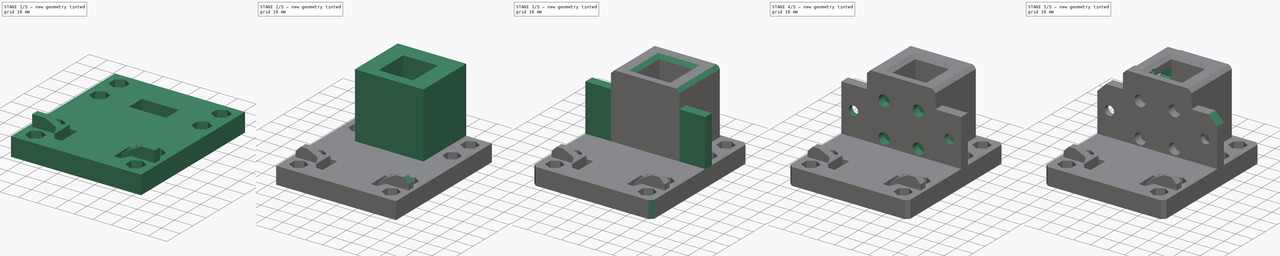
[diagram: build sequence overview — one tinted view per stage of 5, left to right]
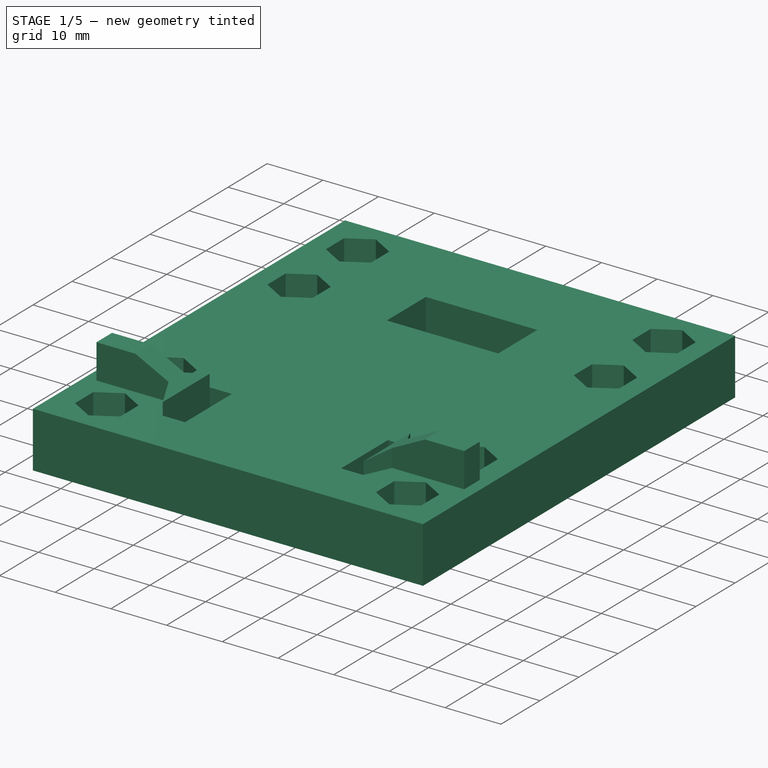
[diagram: stage 1 of 5 — iso view after this stage's code; geometry added in this stage tinted green]
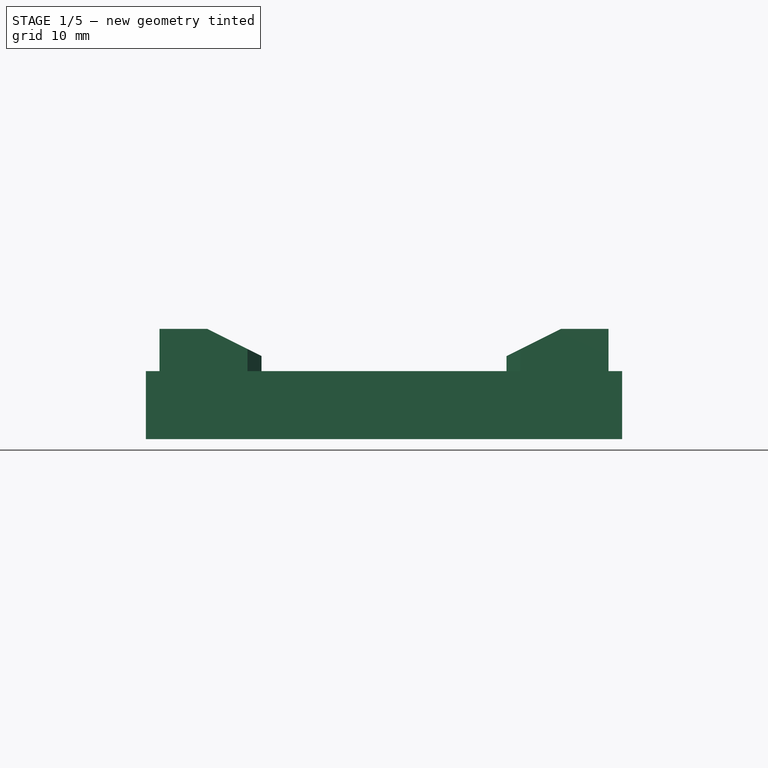
[diagram: stage 1 of 5 — front view after this stage's code; geometry added in this stage tinted green]
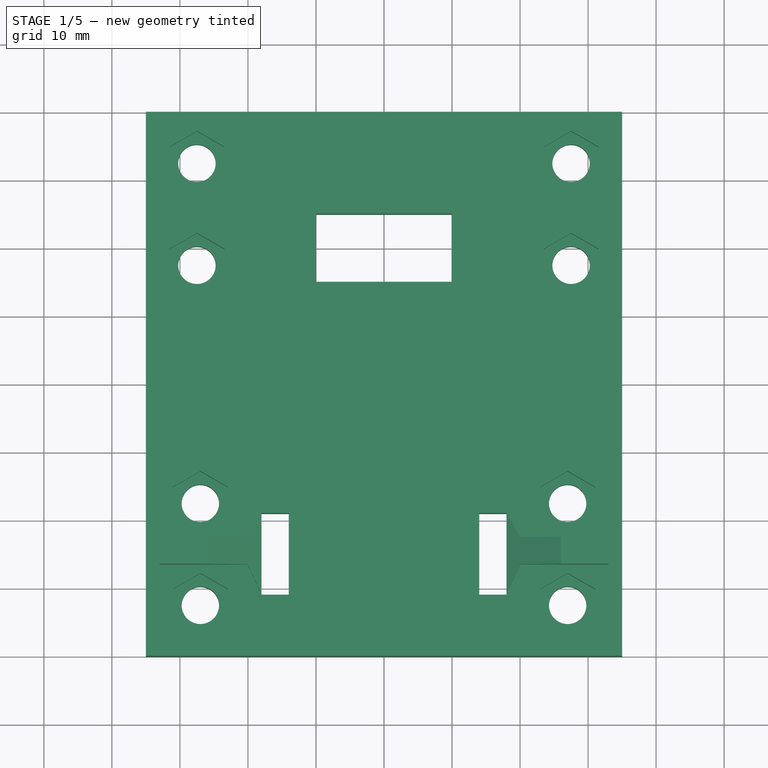
[diagram: stage 1 of 5 — top view after this stage's code; geometry added in this stage tinted green]
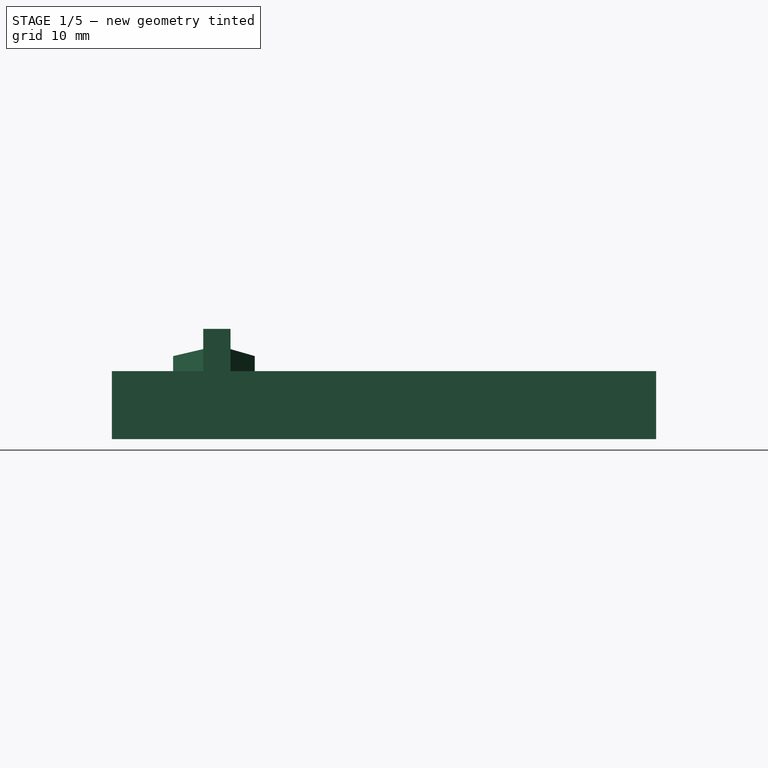
[diagram: stage 1 of 5 — right view after this stage's code; geometry added in this stage tinted green]
FCSTD DOCUMENT  (FreeCAD 0.20R29177 (Git))
Label: y-gantry
License: All rights reserved
LicenseURL: http://en.wikipedia.org/wiki/All_rights_reserved
objects: Sketcher::SketchObject×12, PartDesign::Pocket×9, PartDesign::Plane×7, PartDesign::Chamfer×5, PartDesign::Pad×4, PartDesign::Fillet×2, Part::Part2DObjectPython×1, PartDesign::Body×1
note: 61 computed .brp shape members not serialized (recipe doc carries the construction recipe); baked Part::Feature solids carry a one-line shape summary decoded from their .brp

FEATURE [Sketcher::SketchObject] Sketch
  FullyConstrained = false
  MapMode = 5
  Support = -> [XY_Plane]
  sketch-geometry (43):
    g0: LineSegment StartX=35 StartY=-50 StartZ=0 EndX=35 EndY=30 EndZ=0
    g1: LineSegment StartX=35 StartY=30 StartZ=0 EndX=-35 EndY=30 EndZ=0
    g2: LineSegment StartX=-35 StartY=30 StartZ=0 EndX=-35 EndY=-50 EndZ=0
    g3: LineSegment StartX=0 StartY=0 StartZ=0 EndX=-2.54e-14 EndY=-70.0002 EndZ=0
    g4: LineSegment StartX=-20 StartY=-50 StartZ=0 EndX=-35 EndY=-50 EndZ=0
    g5: LineSegment StartX=-27 StartY=-27.5 StartZ=0 EndX=-27 EndY=-42.5 EndZ=0
    g6: LineSegment StartX=-27 StartY=-35 StartZ=0 EndX=-1.42e-14 EndY=-35 EndZ=0
    g7: GeomPoint X=0 Y=-14.25 Z=0
    g8: Circle CenterX=-27 CenterY=-27.5 CenterZ=0 NormalX=0 NormalY=0 NormalZ=1 AngleXU=0 Radius=2.75
    g9: Circle CenterX=-27 CenterY=-42.5 CenterZ=0 NormalX=0 NormalY=0 NormalZ=1 AngleXU=0 Radius=2.75
    g10: LineSegment StartX=-18 StartY=-29 StartZ=0 EndX=-14 EndY=-29 EndZ=0
    g11: LineSegment StartX=-14 StartY=-29 StartZ=0 EndX=-14 EndY=-41 EndZ=0
    g12: LineSegment StartX=-14 StartY=-41 StartZ=0 EndX=-18 EndY=-41 EndZ=0
    g13: LineSegment StartX=-18 StartY=-41 StartZ=0 EndX=-18 EndY=-29 EndZ=0
    g14: LineSegment StartX=20 StartY=-50 StartZ=0 EndX=35 EndY=-50 EndZ=0
    g15: LineSegment StartX=18 StartY=-29 StartZ=0 EndX=14 EndY=-29 EndZ=0
    g16: LineSegment StartX=14 StartY=-29 StartZ=0 EndX=14 EndY=-41 EndZ=0
    g17: LineSegment StartX=14 StartY=-41 StartZ=0 EndX=18 EndY=-41 EndZ=0
    g18: Circle CenterX=27 CenterY=-42.5 CenterZ=0 NormalX=0 NormalY=0 NormalZ=1 AngleXU=0 Radius=2.75
    g19: Circle CenterX=27 CenterY=-27.5 CenterZ=0 NormalX=0 NormalY=0 NormalZ=1 AngleXU=0 Radius=2.75
    g20: LineSegment StartX=18 StartY=-41 StartZ=0 EndX=18 EndY=-29 EndZ=0
    g21: LineSegment StartX=27 StartY=-27.5 StartZ=0 EndX=27 EndY=-42.5 EndZ=0
    g22: LineSegment StartX=-1.42e-14 StartY=-35 StartZ=0 EndX=27 EndY=-35 EndZ=0
    g23: LineSegment StartX=-27.5 StartY=0 StartZ=0 EndX=-27.5 EndY=30 EndZ=0
    g24: LineSegment StartX=27.5 StartY=0 StartZ=0 EndX=27.5 EndY=30 EndZ=0
    g25: Circle CenterX=-27.5 CenterY=22.5 CenterZ=0 NormalX=0 NormalY=0 NormalZ=1 AngleXU=0 Radius=2.75
    g26: Circle CenterX=-27.5 CenterY=7.5 CenterZ=0 NormalX=0 NormalY=0 NormalZ=1 AngleXU=0 Radius=2.75
    g27: Circle CenterX=27.5 CenterY=22.5 CenterZ=0 NormalX=0 NormalY=0 NormalZ=1 AngleXU=0 Radius=2.75
    g28: Circle CenterX=27.5 CenterY=7.5 CenterZ=0 NormalX=0 NormalY=0 NormalZ=1 AngleXU=0 Radius=2.75
    g29: LineSegment StartX=-10 StartY=5 StartZ=0 EndX=10 EndY=5 EndZ=0
    g30: LineSegment StartX=10 StartY=5 StartZ=0 EndX=10 EndY=15 EndZ=0
    g31: LineSegment StartX=10 StartY=15 StartZ=0 EndX=-10 EndY=15 EndZ=0
    g32: LineSegment StartX=-10 StartY=15 StartZ=0 EndX=-10 EndY=5 EndZ=0
    g33: LineSegment StartX=-75 StartY=-17 StartZ=0 EndX=75 EndY=-17 EndZ=0
    g34: LineSegment StartX=75 StartY=-17 StartZ=0 EndX=75 EndY=-25 EndZ=0
    g35: LineSegment StartX=75 StartY=-25 StartZ=0 EndX=-75 EndY=-25 EndZ=0
    g36: LineSegment StartX=-75 StartY=-25 StartZ=0 EndX=-75 EndY=-17 EndZ=0
    g37: GeomPoint X=20 Y=-26.8 Z=0
    g38: LineSegment StartX=-20 StartY=-50 StartZ=0 EndX=20 EndY=-50 EndZ=0
    g39: LineSegment StartX=-75 StartY=-45 StartZ=0 EndX=75 EndY=-45 EndZ=0
    g40: LineSegment StartX=75 StartY=-45 StartZ=0 EndX=75 EndY=-25 EndZ=0
    g41: LineSegment StartX=75 StartY=-25 StartZ=0 EndX=-75 EndY=-25 EndZ=0
    g42: LineSegment StartX=-75 StartY=-25 StartZ=0 EndX=-75 EndY=-45 EndZ=0
  constraints (113):
    c: Coincident(g0,g1)
    c: Coincident(g1,g2)
    c: Vertical(g0)
    c: Vertical(g2)
    c: Symmetric(g1,g0,g-2)
    c: Distance(g1) = 70
    c: Distance(g-1,g1) = 30
    c: Coincident(g3,g-1)
    c: Horizontal(g4)
    c: Vertical(g5)
    c: PointOnObject(g6,g5)
    c: PointOnObject(g6,g3)
    c: Symmetric(g5,g5,g6)
    c: DistanceX(g6,g6) = 27
    c: Coincident(g8,g5)
    c: Coincident(g9,g5)
    c: Coincident(g10,g11)
    c: Coincident(g11,g12)
    c: Coincident(g12,g13)
    c: Coincident(g13,g10)
    c: Horizontal(g10)
    c: Horizontal(g12)
    c: Vertical(g11)
    c: Symmetric(g10,g12,g6)
    c: Distance(g-1,g4) = 50
    c: DistanceX(g4,g-1) = 20
    c: Horizontal(g14)
    c: PointOnObject(g14,g4)
    c: DistanceX(g-1,g14) = 20
    c: Coincident(g15,g16)
    c: Coincident(g16,g17)
    c: Horizontal(g15)
    c: Horizontal(g17)
    c: Vertical(g16)
    c: Distance(g17) = 4
    c: Diameter(g19) = 5.5
    c: Diameter(g18) = 5.5
    c: Distance(g20) = 12
    c: Coincident(g21,g19)
    c: Coincident(g21,g18)
    c: Coincident(g22,g6)
    c: PointOnObject(g22,g21)
    c: Symmetric(g19,g18,g22)
    c: Distance(g6,g21) = 27
    c: Distance(g15,g0) = 17
    c: Distance(g21) = 15
    c: Symmetric(g16,g15,g22)
    c: Coincident(g20,g15)
    c: Coincident(g17,g20)
    c: Vertical(g20)
    c: PointOnObject(g23,g-1)
    c: PointOnObject(g23,g1)
    c: Vertical(g23)
    c: PointOnObject(g24,g-1)
    c: PointOnObject(g24,g1)
    c: Vertical(g24)
    c: Distance(g23,g2) = 7.5
    c: Distance(g24,g0) = 7.5
    c: PointOnObject(g25,g23)
    c: PointOnObject(g26,g23)
    c: PointOnObject(g27,g24)
    c: PointOnObject(g28,g24)
    c: Diameter(g25) = 5.5
    c: Diameter(g26) = 5.5
    c: Diameter(g27) = 5.5
    c: Diameter(g28) = 5.5
    c: Distance(g25,g1) = 7.5
    c: Distance(g26,g23) = 7.5
    c: Distance(g28,g24) = 7.5
    c: Distance(g27,g1) = 7.5
    c: Coincident(g29,g30)
    c: Coincident(g30,g31)
    c: Coincident(g31,g32)
    c: Coincident(g32,g29)
    c: Horizontal(g29)
    c: Vertical(g30)
    c: Vertical(g32)
    c: Distance(g31) = 20
    c: Distance(g30) = 10
    c: Symmetric(g31,g30,g-2)
    c: Distance(g-1,g29) = 5
    c: Coincident(g33,g34)
    c: Coincident(g34,g35)
    c: Coincident(g35,g36)
    c: Coincident(g36,g33)
    c: Vertical(g34)
    c: Vertical(g36)
    c: DistanceY(g34,g34) = 8  'RailHeight'
    c: DistanceY(g37,g34) = 1.8
    c: Coincident(g38,g4)
    c: Coincident(g38,g14)
    c: DistanceY(g33,g3) = 17  'RailTopY'
    c: Coincident(g4,g2)
    c: Coincident(g0,g14)
    c: Coincident(g39,g40)
    c: Coincident(g40,g41)
    c: Coincident(g41,g42)
    c: Coincident(g42,g39)
    c: Horizontal(g39)
    c: Vertical(g42)
    c: Symmetric(g40,g41,g3)
    c: DistanceY(g40,g40) = 20  'ExtrusionHeight'
    c: Symmetric(g39,g40,g22)
    c: DistanceX(g39,g39) = 150
    c: Equal(g33,g39)
    c: Symmetric(g33,g33,g-2)
    c: DistanceY(g6,g3) = 35
    c: Symmetric(g8,g19,g3)
    c: Equal(g19,g8)
    c: Equal(g9,g8)
    c: Equal(g15,g10)
    c: Symmetric(g10,g15,g3)
    c: Tangent(g35,g41)
FEATURE [PartDesign::Pad] Pad
  AllowMultiFace = false
  Direction = (0,0,1)
  Length = 10
  Length2 = 100
  Profile = -> Sketch
  Type = 0
FEATURE [PartDesign::Plane] DatumPlane
  Length = 84.9666
  MapMode = 5
  Placement = pos=(0,0,10) rot=(0,0,1;0rad)
  ResizeMode = 0
  Support = -> [Pad]
  Width = 94.9666
FEATURE [Sketcher::SketchObject] Sketch001
  FullyConstrained = false
  MapMode = 5
  Placement = pos=(0,0,10) rot=(0,0,1;0rad)
  Support = -> [DatumPlane]
  expr: Constraints[45] = <<Sketch>>.Constraints.RailTopY
  sketch-geometry (17):
    g0: LineSegment StartX=-10.1 StartY=0 StartZ=0 EndX=-10.1 EndY=20.5 EndZ=0
    g1: LineSegment StartX=-10.1 StartY=20.5 StartZ=0 EndX=10.1 EndY=20.5 EndZ=0
    g2: LineSegment StartX=10.1 StartY=20.5 StartZ=0 EndX=10.1 EndY=0 EndZ=0
    g3: LineSegment StartX=20 StartY=-5.65 StartZ=0 EndX=20 EndY=30 EndZ=0
    g4: LineSegment StartX=20 StartY=30 StartZ=0 EndX=-20 EndY=30 EndZ=0
    g5: LineSegment StartX=-20 StartY=30 StartZ=0 EndX=-20 EndY=-5.65 EndZ=0
    g6: LineSegment StartX=-10.1 StartY=0 StartZ=0 EndX=10.1 EndY=0 EndZ=0
    g7: LineSegment StartX=-20 StartY=-5.65 StartZ=0 EndX=20 EndY=-5.65 EndZ=0
    g8: LineSegment StartX=20 StartY=-5.65 StartZ=0 EndX=20 EndY=-5.65 EndZ=0
    g9: LineSegment StartX=-50 StartY=-17 StartZ=0 EndX=50 EndY=-17 EndZ=0
    g10: LineSegment StartX=50 StartY=-17 StartZ=0 EndX=50 EndY=-25 EndZ=0
    g11: LineSegment StartX=50 StartY=-25 StartZ=0 EndX=-50 EndY=-25 EndZ=0
    g12: LineSegment StartX=-50 StartY=-25 StartZ=0 EndX=-50 EndY=-17 EndZ=0
    g13: LineSegment StartX=-22.7 StartY=-22 StartZ=0 EndX=22.7 EndY=-22 EndZ=0
    g14: LineSegment StartX=22.7 StartY=-22 StartZ=0 EndX=22.7 EndY=-12 EndZ=0
    g15: LineSegment StartX=22.7 StartY=-12 StartZ=0 EndX=-22.7 EndY=-12 EndZ=0
    g16: LineSegment StartX=-22.7 StartY=-12 StartZ=0 EndX=-22.7 EndY=-22 EndZ=0
  constraints (47):
    c: PointOnObject(g0,g-1)
    c: Vertical(g0)
    c: Coincident(g0,g1)
    c: Coincident(g1,g2)
    c: PointOnObject(g2,g-1)
    c: Vertical(g2)
    c: Vertical(g3)
    c: Coincident(g3,g4)
    c: Coincident(g4,g5)
    c: Vertical(g5)
    c: Distance(g-1,g4) = 30
    c: Distance(g-1,g1) = 20.5
    c: Coincident(g6,g0)
    c: Coincident(g6,g2)
    c: Horizontal(g3,g5)
    c: Symmetric(g4,g3,g-2)
    c: Horizontal(g8)
    c: Coincident(g8,g3)
    c: Symmetric(g7,g7,g-2)
    c: Coincident(g9,g10)
    c: Coincident(g10,g11)
    c: Coincident(g11,g12)
    c: Coincident(g12,g9)
    c: Horizontal(g9)
    c: Vertical(g10)
    c: Vertical(g12)
    c: Coincident(g13,g14)
    c: Coincident(g14,g15)
    c: Coincident(g15,g16)
    c: Coincident(g16,g13)
    c: Horizontal(g13)
    c: Vertical(g14)
    c: Vertical(g16)
    c: Symmetric(g15,g14,g-2)
    c: Symmetric(g10,g11,g-2)
    c: DistanceY(g10,g10) = 8
    c: DistanceY(g10,g14) = 13
    c: DistanceY(g10,g13) = 3
    c: DistanceX(g15,g15) = 45.4
    c: DistanceX(g11,g11) = 100
    c: DistanceY(g14,g7) = 6.35
    c: DistanceX(g6,g6) = 20.2
    c: Symmetric(g0,g1,g-2)
    c: DistanceX(g4,g4) = 40
    c: Coincident(g5,g7)
    c: DistanceY(g9,g-1) = 17
    c: DistanceY(g9,g14) = 5
FEATURE [Sketcher::SketchObject] Sketch004
  AttachmentOffset = pos=(0,0,10) rot=(0,0,1;0rad)
  FullyConstrained = true
  MapMode = 2
  Placement = pos=(0,0,10) rot=(0,0,1;0rad)
  Support = -> [XY_Plane]
  sketch-geometry (64):
    g0: LineSegment StartX=-27.5 StartY=17.8235 StartZ=0 EndX=-23.45 EndY=20.1617 EndZ=0
    g1: LineSegment StartX=-23.45 StartY=20.1617 StartZ=0 EndX=-23.45 EndY=24.8383 EndZ=0
    g2: LineSegment StartX=-23.45 StartY=24.8383 StartZ=0 EndX=-27.5 EndY=27.1765 EndZ=0
    g3: LineSegment StartX=-27.5 StartY=27.1765 StartZ=0 EndX=-31.55 EndY=24.8383 EndZ=0
    g4: LineSegment StartX=-31.55 StartY=24.8383 StartZ=0 EndX=-31.55 EndY=20.1617 EndZ=0
    g5: LineSegment StartX=-31.55 StartY=20.1617 StartZ=0 EndX=-27.5 EndY=17.8235 EndZ=0
    g6: Circle CenterX=-27.5 CenterY=22.5 CenterZ=0 NormalX=0 NormalY=0 NormalZ=1 AngleXU=0 Radius=4.67654
    g7: LineSegment StartX=27.5 StartY=17.8235 StartZ=0 EndX=31.55 EndY=20.1617 EndZ=0
    g8: LineSegment StartX=31.55 StartY=20.1617 StartZ=0 EndX=31.55 EndY=24.8383 EndZ=0
    g9: LineSegment StartX=31.55 StartY=24.8383 StartZ=0 EndX=27.5 EndY=27.1765 EndZ=0
    g10: LineSegment StartX=27.5 StartY=27.1765 StartZ=0 EndX=23.45 EndY=24.8383 EndZ=0
    g11: LineSegment StartX=23.45 StartY=24.8383 StartZ=0 EndX=23.45 EndY=20.1617 EndZ=0
    g12: LineSegment StartX=23.45 StartY=20.1617 StartZ=0 EndX=27.5 EndY=17.8235 EndZ=0
    g13: Circle CenterX=27.5 CenterY=22.5 CenterZ=0 NormalX=0 NormalY=0 NormalZ=1 AngleXU=0 Radius=4.67654
    g14: LineSegment StartX=27.5 StartY=2.82346 StartZ=0 EndX=31.55 EndY=5.16173 EndZ=0
    g15: LineSegment StartX=31.55 StartY=5.16173 StartZ=0 EndX=31.55 EndY=9.83827 EndZ=0
    g16: LineSegment StartX=31.55 StartY=9.83827 StartZ=0 EndX=27.5 EndY=12.1765 EndZ=0
    g17: LineSegment StartX=27.5 StartY=12.1765 StartZ=0 EndX=23.45 EndY=9.83827 EndZ=0
    g18: LineSegment StartX=23.45 StartY=9.83827 StartZ=0 EndX=23.45 EndY=5.16173 EndZ=0
    g19: LineSegment StartX=23.45 StartY=5.16173 StartZ=0 EndX=27.5 EndY=2.82346 EndZ=0
    g20: Circle CenterX=27.5 CenterY=7.5 CenterZ=0 NormalX=0 NormalY=0 NormalZ=1 AngleXU=0 Radius=4.67654
    g21: LineSegment StartX=-27 StartY=-32.1765 StartZ=0 EndX=-22.95 EndY=-29.8383 EndZ=0
    g22: LineSegment StartX=-22.95 StartY=-29.8383 StartZ=0 EndX=-22.95 EndY=-25.1617 EndZ=0
    g23: LineSegment StartX=-22.95 StartY=-25.1617 StartZ=0 EndX=-27 EndY=-22.8235 EndZ=0
    g24: LineSegment StartX=-27 StartY=-22.8235 StartZ=0 EndX=-31.05 EndY=-25.1617 EndZ=0
    g25: LineSegment StartX=-31.05 StartY=-25.1617 StartZ=0 EndX=-31.05 EndY=-29.8383 EndZ=0
    g26: LineSegment StartX=-31.05 StartY=-29.8383 StartZ=0 EndX=-27 EndY=-32.1765 EndZ=0
    g27: Circle CenterX=-27 CenterY=-27.5 CenterZ=0 NormalX=0 NormalY=0 NormalZ=1 AngleXU=0 Radius=4.67654
    g28: LineSegment StartX=-27 StartY=-47.1765 StartZ=0 EndX=-22.95 EndY=-44.8383 EndZ=0
    g29: LineSegment StartX=-22.95 StartY=-44.8383 StartZ=0 EndX=-22.95 EndY=-40.1617 EndZ=0
    g30: LineSegment StartX=-22.95 StartY=-40.1617 StartZ=0 EndX=-27 EndY=-37.8235 EndZ=0
    g31: LineSegment StartX=-27 StartY=-37.8235 StartZ=0 EndX=-31.05 EndY=-40.1617 EndZ=0
    g32: LineSegment StartX=-31.05 StartY=-40.1617 StartZ=0 EndX=-31.05 EndY=-44.8383 EndZ=0
    g33: LineSegment StartX=-31.05 StartY=-44.8383 StartZ=0 EndX=-27 EndY=-47.1765 EndZ=0
    g34: Circle CenterX=-27 CenterY=-42.5 CenterZ=0 NormalX=0 NormalY=0 NormalZ=1 AngleXU=0 Radius=4.67654
    g35: LineSegment StartX=27 StartY=-32.1765 StartZ=0 EndX=31.05 EndY=-29.8383 EndZ=0
    g36: LineSegment StartX=31.05 StartY=-29.8383 StartZ=0 EndX=31.05 EndY=-25.1617 EndZ=0
    g37: LineSegment StartX=31.05 StartY=-25.1617 StartZ=0 EndX=27 EndY=-22.8235 EndZ=0
    g38: LineSegment StartX=27 StartY=-22.8235 StartZ=0 EndX=22.95 EndY=-25.1617 EndZ=0
    g39: LineSegment StartX=22.95 StartY=-25.1617 StartZ=0 EndX=22.95 EndY=-29.8383 EndZ=0
    g40: LineSegment StartX=22.95 StartY=-29.8383 StartZ=0 EndX=27 EndY=-32.1765 EndZ=0
    g41: Circle CenterX=27 CenterY=-27.5 CenterZ=0 NormalX=0 NormalY=0 NormalZ=1 AngleXU=0 Radius=4.67654
    g42: LineSegment StartX=-23.45 StartY=5.16173 StartZ=0 EndX=-23.45 EndY=9.83827 EndZ=0
    g43: LineSegment StartX=-23.45 StartY=9.83827 StartZ=0 EndX=-27.5 EndY=12.1765 EndZ=0
    g44: LineSegment StartX=-27.5 StartY=12.1765 StartZ=0 EndX=-31.55 EndY=9.83827 EndZ=0
    g45: LineSegment StartX=-31.55 StartY=9.83827 StartZ=0 EndX=-31.55 EndY=5.16173 EndZ=0
    g46: LineSegment StartX=-31.55 StartY=5.16173 StartZ=0 EndX=-27.5 EndY=2.82346 EndZ=0
    g47: LineSegment StartX=-27.5 StartY=2.82346 StartZ=0 EndX=-23.45 EndY=5.16173 EndZ=0
    g48: Circle CenterX=-27.5 CenterY=7.5 CenterZ=0 NormalX=0 NormalY=0 NormalZ=1 AngleXU=0 Radius=4.67654
    g49: LineSegment StartX=31.05 StartY=-44.8383 StartZ=0 EndX=31.05 EndY=-40.1617 EndZ=0
    g50: LineSegment StartX=31.05 StartY=-40.1617 StartZ=0 EndX=27 EndY=-37.8235 EndZ=0
    g51: LineSegment StartX=27 StartY=-37.8235 StartZ=0 EndX=22.95 EndY=-40.1617 EndZ=0
    g52: LineSegment StartX=22.95 StartY=-40.1617 StartZ=0 EndX=22.95 EndY=-44.8383 EndZ=0
    g53: LineSegment StartX=22.95 StartY=-44.8383 StartZ=0 EndX=27 EndY=-47.1765 EndZ=0
    g54: LineSegment StartX=27 StartY=-47.1765 StartZ=0 EndX=31.05 EndY=-44.8383 EndZ=0
    g55: Circle CenterX=27 CenterY=-42.5 CenterZ=0 NormalX=0 NormalY=0 NormalZ=1 AngleXU=0 Radius=4.67654
    g56: LineSegment StartX=-27 StartY=-42.5 StartZ=0 EndX=27 EndY=-42.5 EndZ=0
    g57: LineSegment StartX=27 StartY=-42.5 StartZ=0 EndX=27 EndY=-27.5 EndZ=0
    g58: LineSegment StartX=27 StartY=-27.5 StartZ=0 EndX=-27 EndY=-27.5 EndZ=0
    g59: LineSegment StartX=-27 StartY=-27.5 StartZ=0 EndX=-27 EndY=-42.5 EndZ=0
    g60: LineSegment StartX=-27.5 StartY=22.5 StartZ=0 EndX=27.5 EndY=22.5 EndZ=0
    g61: LineSegment StartX=27.5 StartY=22.5 StartZ=0 EndX=27.5 EndY=7.5 EndZ=0
    g62: LineSegment StartX=27.5 StartY=7.5 StartZ=0 EndX=-27.5 EndY=7.5 EndZ=0
    g63: LineSegment StartX=-27.5 StartY=7.5 StartZ=0 EndX=-27.5 EndY=22.5 EndZ=0
  constraints (150):
    c: Coincident(g0,g1)
    c: Coincident(g1,g2)
    c: Coincident(g2,g3)
    c: Coincident(g3,g4)
    c: Coincident(g4,g5)
    c: Coincident(g5,g0)
    c: Equal(g0, g1-g5) x5
    c: PointOnObject(g0,g6)
    c: PointOnObject(g1,g6)
    c: PointOnObject(g2,g6)
    c: PointOnObject(g3,g6)
    c: PointOnObject(g4,g6)
    c: PointOnObject(g5,g6)
    c: Coincident(g7,g8)
    c: Coincident(g8,g9)
    c: Coincident(g9,g10)
    c: Coincident(g10,g11)
    c: Coincident(g11,g12)
    c: Coincident(g12,g7)
    c: Equal(g7, g8-g12) x5
    c: PointOnObject(g7,g13)
    c: PointOnObject(g8,g13)
    c: PointOnObject(g9,g13)
    c: PointOnObject(g10,g13)
    c: PointOnObject(g11,g13)
    c: PointOnObject(g12,g13)
    c: Coincident(g14,g15)
    c: Coincident(g15,g16)
    c: Coincident(g16,g17)
    c: Coincident(g17,g18)
    c: Coincident(g18,g19)
    c: Coincident(g19,g14)
    c: Equal(g14, g15-g19) x5
    c: PointOnObject(g14,g20)
    c: PointOnObject(g15,g20)
    c: PointOnObject(g16,g20)
    c: PointOnObject(g17,g20)
    c: PointOnObject(g18,g20)
    c: PointOnObject(g19,g20)
    c: Coincident(g21,g22)
    c: Coincident(g22,g23)
    c: Coincident(g23,g24)
    c: Coincident(g24,g25)
    c: Coincident(g25,g26)
    c: Coincident(g26,g21)
    c: Equal(g21, g22-g26) x5
    c: PointOnObject(g21,g27)
    c: PointOnObject(g22,g27)
    c: PointOnObject(g23,g27)
    c: PointOnObject(g24,g27)
    c: PointOnObject(g25,g27)
    c: PointOnObject(g26,g27)
    c: Coincident(g28,g29)
    c: Coincident(g29,g30)
    c: Coincident(g30,g31)
    c: Coincident(g31,g32)
    c: Coincident(g32,g33)
    c: Coincident(g33,g28)
    c: Equal(g28, g29-g33) x5
    c: PointOnObject(g28,g34)
    c: PointOnObject(g29,g34)
    c: PointOnObject(g30,g34)
    c: PointOnObject(g31,g34)
    c: PointOnObject(g32,g34)
    c: PointOnObject(g33,g34)
    c: Coincident(g35,g36)
    c: Coincident(g36,g37)
    c: Coincident(g37,g38)
    c: Coincident(g38,g39)
    c: Coincident(g39,g40)
    c: Coincident(g40,g35)
    c: Equal(g35, g36-g40) x5
    c: PointOnObject(g35,g41)
    c: PointOnObject(g36,g41)
    c: PointOnObject(g37,g41)
    c: PointOnObject(g38,g41)
    c: PointOnObject(g39,g41)
    c: PointOnObject(g40,g41)
    c: Vertical(g4)
    c: Vertical(g11)
    c: Vertical(g18)
    c: Vertical(g25)
    c: Vertical(g32)
    c: Vertical(g39)
    c: Distance(g3,g1) = 8.1
    c: Distance(g10,g8) = 8.1
    c: Distance(g17,g15) = 8.1
    c: Distance(g24,g22) = 8.1
    c: Distance(g31,g29) = 8.1
    c: Distance(g38,g36) = 8.1
    c: Coincident(g42,g43)
    c: Coincident(g43,g44)
    c: Coincident(g44,g45)
    c: Coincident(g45,g46)
    c: Coincident(g46,g47)
    c: Coincident(g47,g42)
    c: Equal(g42, g43-g47) x5
    c: PointOnObject(g42,g48)
    c: PointOnObject(g43,g48)
    c: PointOnObject(g44,g48)
    c: PointOnObject(g45,g48)
    c: PointOnObject(g46,g48)
    c: PointOnObject(g47,g48)
    c: Coincident(g49,g50)
    c: Coincident(g50,g51)
    c: Coincident(g51,g52)
    c: Coincident(g52,g53)
    c: Coincident(g53,g54)
    c: Coincident(g54,g49)
    c: Equal(g49, g50-g54) x5
    c: PointOnObject(g49,g55)
    c: PointOnObject(g50,g55)
    c: PointOnObject(g51,g55)
    c: PointOnObject(g52,g55)
    c: PointOnObject(g53,g55)
    c: PointOnObject(g54,g55)
    c: Coincident(g56,g57)
    c: Coincident(g57,g58)
    c: Coincident(g58,g59)
    c: Coincident(g59,g56)
    c: Horizontal(g58)
    c: Vertical(g57)
    c: Vertical(g59)
    c: Coincident(g56,g34)
    c: Coincident(g57,g41)
    c: Coincident(g55,g56)
    c: Vertical(g49)
    c: Coincident(g27,g58)
    c: Symmetric(g34,g55,g-2)
    c: DistanceY(g59,g59) = 15
    c: DistanceY(g27,g-1) = 27.5
    c: DistanceX(g58,g58) = 54
    c: DistanceX(g51,g49) = 8.1
    c: Vertical(g42)
    c: DistanceX(g44,g42) = 8.1
    c: Coincident(g60,g61)
    c: Coincident(g61,g62)
    c: Coincident(g62,g63)
    c: Coincident(g63,g60)
    c: Horizontal(g60)
    c: Vertical(g61)
    c: Vertical(g63)
    c: Coincident(g60,g6)
    c: Coincident(g61,g20)
    c: Coincident(g48,g62)
    c: Coincident(g13,g60)
    c: Symmetric(g48,g20,g-2)
    c: DistanceY(g-1,g48) = 7.5
    c: DistanceY(g63,g63) = 15
    c: DistanceX(g62,g62) = 55
FEATURE [Sketcher::SketchObject] Sketch012
  FullyConstrained = true
  MapMode = 5
  Placement = pos=(0,0,10) rot=(0,0,1;0rad)
  Support = -> [DatumPlane]
  sketch-geometry (12):
    g0: LineSegment StartX=-33 StartY=-32.5744 StartZ=0 EndX=-33 EndY=-36.5744 EndZ=0
    g1: LineSegment StartX=-33 StartY=-36.5744 StartZ=0 EndX=-20.0637 EndY=-36.5744 EndZ=0
    g2: LineSegment StartX=-20.0637 StartY=-36.5744 StartZ=0 EndX=-18 EndY=-41 EndZ=0
    g3: LineSegment StartX=-18 StartY=-41 StartZ=0 EndX=-18 EndY=-29 EndZ=0
    g4: LineSegment StartX=-18 StartY=-29 StartZ=0 EndX=-20.0637 EndY=-32.5744 EndZ=0
    g5: LineSegment StartX=-20.0637 StartY=-32.5744 StartZ=0 EndX=-33 EndY=-32.5744 EndZ=0
    g6: LineSegment StartX=18 StartY=-29 StartZ=0 EndX=18 EndY=-41 EndZ=0
    g7: LineSegment StartX=18 StartY=-41 StartZ=0 EndX=20.0637 EndY=-36.5744 EndZ=0
    g8: LineSegment StartX=20.0637 StartY=-36.5744 StartZ=0 EndX=33 EndY=-36.5744 EndZ=0
    g9: LineSegment StartX=33 StartY=-36.5744 StartZ=0 EndX=33 EndY=-32.5744 EndZ=0
    g10: LineSegment StartX=33 StartY=-32.5744 StartZ=0 EndX=20.0637 EndY=-32.5744 EndZ=0
    g11: LineSegment StartX=20.0637 StartY=-32.5744 StartZ=0 EndX=18 EndY=-29 EndZ=0
  constraints (36):
    c: Vertical(g0)
    c: Coincident(g0,g1)
    c: Horizontal(g1)
    c: Coincident(g1,g2)
    c: Coincident(g2,g3)
    c: Vertical(g3)
    c: Coincident(g3,g4)
    c: Coincident(g4,g5)
    c: Coincident(g5,g0)
    c: Horizontal(g5)
    c: Angle(g4,g3) = 0.523599
    c: Angle(g3,g2) = 0.436332
    c: DistanceY(g3,g3) = 12
    c: DistanceY(g0,g0) = 4
    c: DistanceX(g3,g-1) = 18
    c: DistanceY(g3,g-1) = 29
    c: Equal(g5,g1)
    c: DistanceX(g0,g2) = 15
    c: Vertical(g6)
    c: Coincident(g6,g7)
    c: Coincident(g7,g8)
    c: Horizontal(g8)
    c: Coincident(g8,g9)
    c: Vertical(g9)
    c: Coincident(g9,g10)
    c: Horizontal(g10)
    c: Coincident(g10,g11)
    c: Coincident(g11,g6)
    c: DistanceY(g6,g6) = 12
    c: DistanceY(g9,g9) = 4
    c: DistanceY(g6,g-1) = 29
    c: DistanceX(g-1,g6) = 18
    c: Angle(g6,g11) = 0.523599
    c: Angle(g7,g6) = 0.436332
    c: Equal(g10,g8)
    c: DistanceX(g6,g9) = 15
FEATURE [PartDesign::Pocket] Pocket002  label="PocketNutPockets"
  AllowMultiFace = false
  BaseFeature = -> Pad
  Direction = (0,0,-1)
  Length = 4.2
  Length2 = 100
  Profile = -> Sketch004
  ReferenceAxis = -> Sketch004 [N_Axis]
  Type = 0
FEATURE [PartDesign::Plane] DatumPlane003  label="DatumPlaneTop"
  Length = 84.2969
  MapMode = 5
  Placement = pos=(3e-15,30,0) rot=(0,0.707107,0.707107;3.14159rad)
  ResizeMode = 0
  Support = -> [Pocket002]
  Width = 87.2969
FEATURE [Sketcher::SketchObject] Sketch007
  FullyConstrained = true
  MapMode = 5
  Placement = pos=(3e-15,30,0) rot=(0,0.707107,0.707107;3.14159rad)
  Support = -> [DatumPlane003]
  sketch-geometry (1):
    g0: Circle CenterX=0 CenterY=30 CenterZ=0 NormalX=0 NormalY=0 NormalZ=1 AngleXU=0 Radius=6
  constraints (3):
    c: PointOnObject(g0,g-2)
    c: Diameter(g0) = 12
    c: Distance(g0,g-1) = 30
FEATURE [Sketcher::SketchObject] Sketch008
  FullyConstrained = true
  MapMode = 5
  Placement = pos=(3e-15,30,0) rot=(0,0.707107,0.707107;3.14159rad)
  Support = -> [DatumPlane003]
  sketch-geometry (1):
    g0: Circle CenterX=0 CenterY=30 CenterZ=0 NormalX=0 NormalY=0 NormalZ=1 AngleXU=0 Radius=2.75
  constraints (3):
    c: PointOnObject(g0,g-2)
    c: Diameter(g0) = 5.5
    c: Distance(g0,g-1) = 30
FEATURE [Part::Part2DObjectPython] ShapeString  label="PN"  # Draft 2D object (typed FeaturePython)
  AttachmentOffset = pos=(-19,3,0) rot=(0,0,1;0rad)
  FontFile = ../../lib/fonts/RobotoMono-VariableFont_weight.ttf
  MapMode = 5
  Placement = pos=(19,30,3) rot=(0,0.707107,0.707107;3.14159rad)
  Size = 5
  String = FDM-0005-02
  Support = -> [DatumPlane003]
  Tracking = 0
FEATURE [PartDesign::Pad] Pad004  label="PadBeltStandoff"
  BaseFeature = -> Pocket002
  Direction = (0,0,1)
  Length = 6.2
  Length2 = 100
  Profile = -> Sketch012
  Type = 0
FEATURE [PartDesign::Chamfer] Chamfer006  label="ChamferBeltStandoff"
  Angle = 45
  Base = -> Pad004 [Edge256,Edge255]
  BaseFeature = -> Pad004
  ChamferType = 1
  FlipDirection = false
  Size = 4
  Size2 = 8
  SupportTransform = false
  UseAllEdges = false
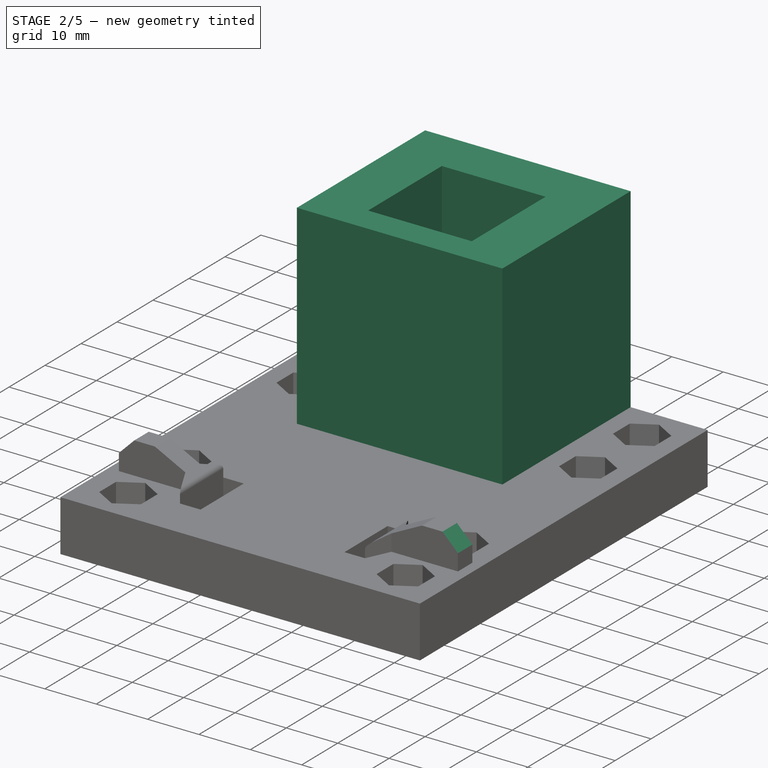
[diagram: stage 2 of 5 — iso view after this stage's code; geometry added in this stage tinted green]
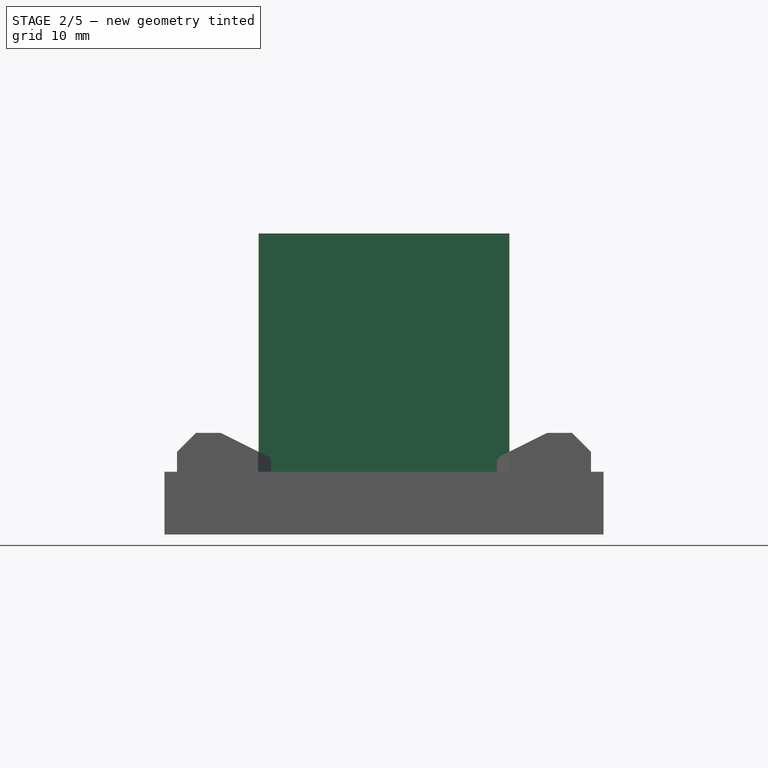
[diagram: stage 2 of 5 — front view after this stage's code; geometry added in this stage tinted green]
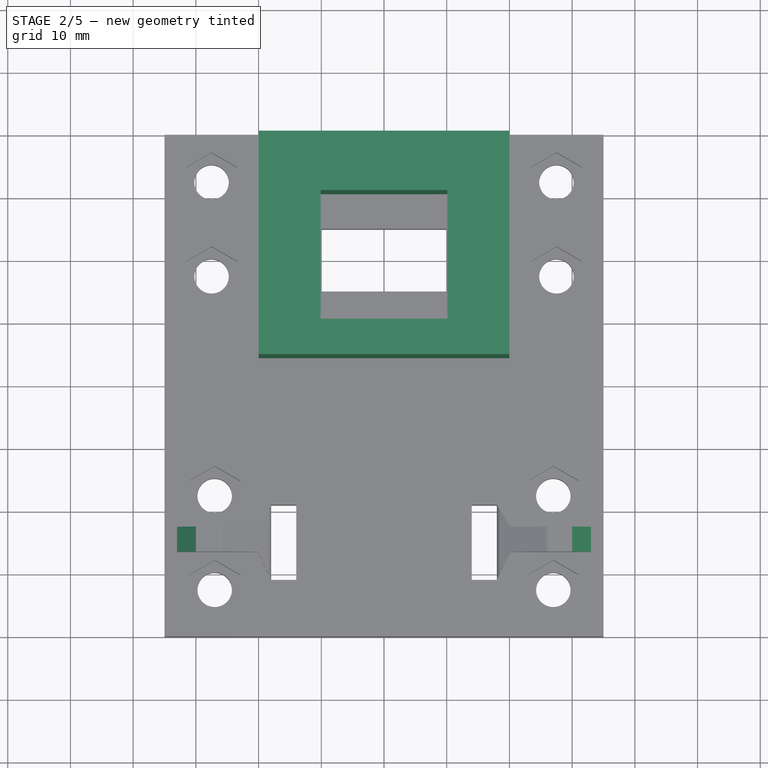
[diagram: stage 2 of 5 — top view after this stage's code; geometry added in this stage tinted green]
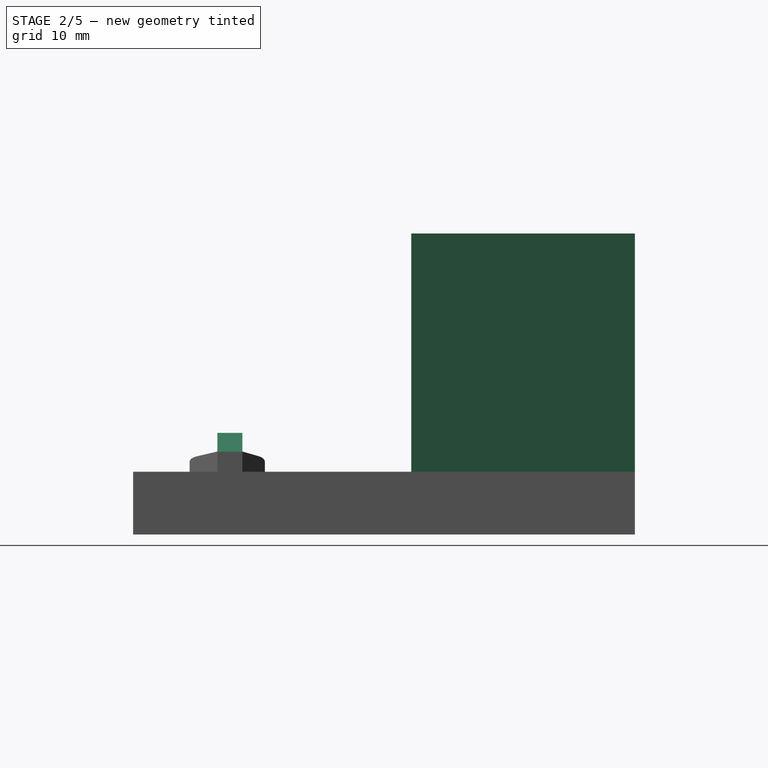
[diagram: stage 2 of 5 — right view after this stage's code; geometry added in this stage tinted green]
FEATURE [PartDesign::Fillet] Fillet001  label="FilletBeltStandoffInner"
  Base = -> Chamfer006 [Edge6,Edge10,Edge247,Edge249]
  BaseFeature = -> Chamfer006
  Radius = 1
  SupportTransform = false
  UseAllEdges = false
FEATURE [PartDesign::Chamfer] Chamfer007  label="ChamferBeltStadoffEdge"
  Angle = 45
  Base = -> Fillet001 [Edge120,Edge161]
  BaseFeature = -> Fillet001
  ChamferType = 0
  FlipDirection = false
  Size = 3
  Size2 = 1
  SupportTransform = false
  UseAllEdges = false
FEATURE [PartDesign::Plane] DatumPlane006  label="PrintPlane"
  Length = 84.9666
  MapMode = 5
  Placement = pos=(0,0,0) rot=(1,0,0;3.14159rad)
  ResizeMode = 0
  Support = -> [Chamfer007]
  Width = 94.9666
FEATURE [PartDesign::Fillet] Fillet  label="FilletBeltHolder"
  Base = -> Chamfer007 [Edge250,Edge249]
  BaseFeature = -> Chamfer007
  Radius = 4
  SupportTransform = false
  UseAllEdges = false
FEATURE [PartDesign::Pad] Pad001  label="PadExtrusionHolder"
  AllowMultiFace = false
  BaseFeature = -> Fillet
  Direction = (0,0,1)
  Length = 38
  Length2 = 100
  Profile = -> Sketch001
  Type = 0
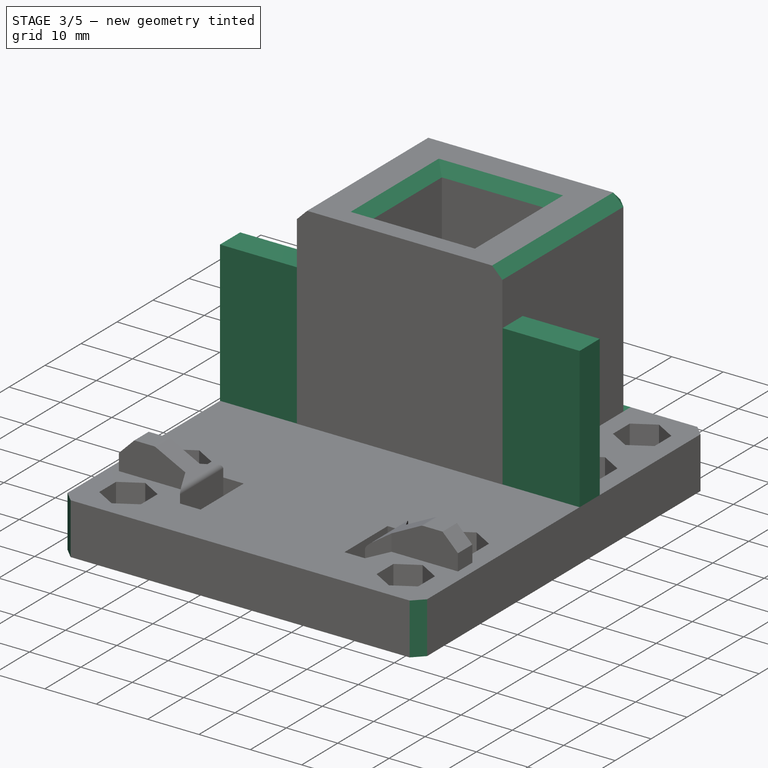
[diagram: stage 3 of 5 — iso view after this stage's code; geometry added in this stage tinted green]
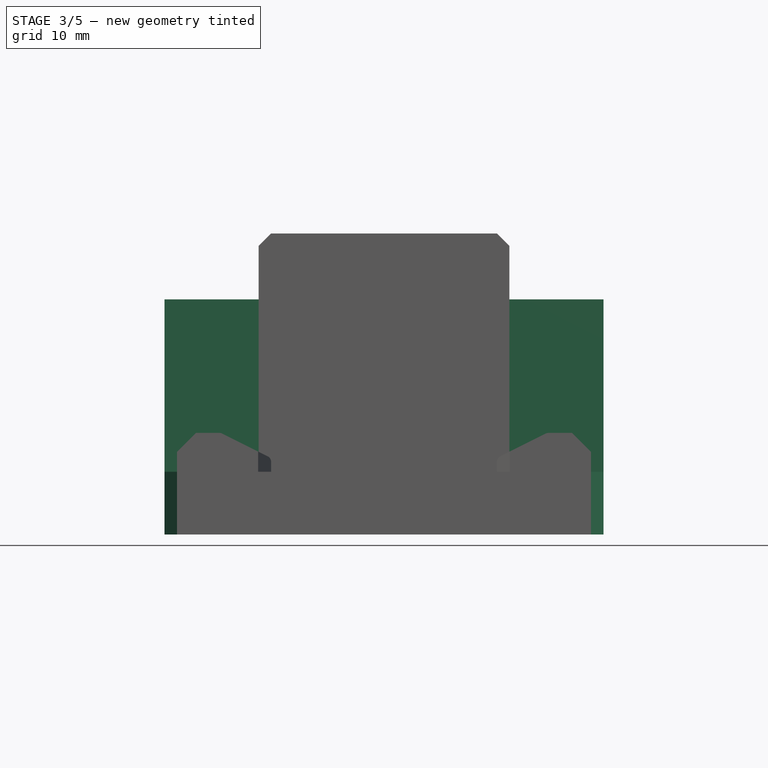
[diagram: stage 3 of 5 — front view after this stage's code; geometry added in this stage tinted green]
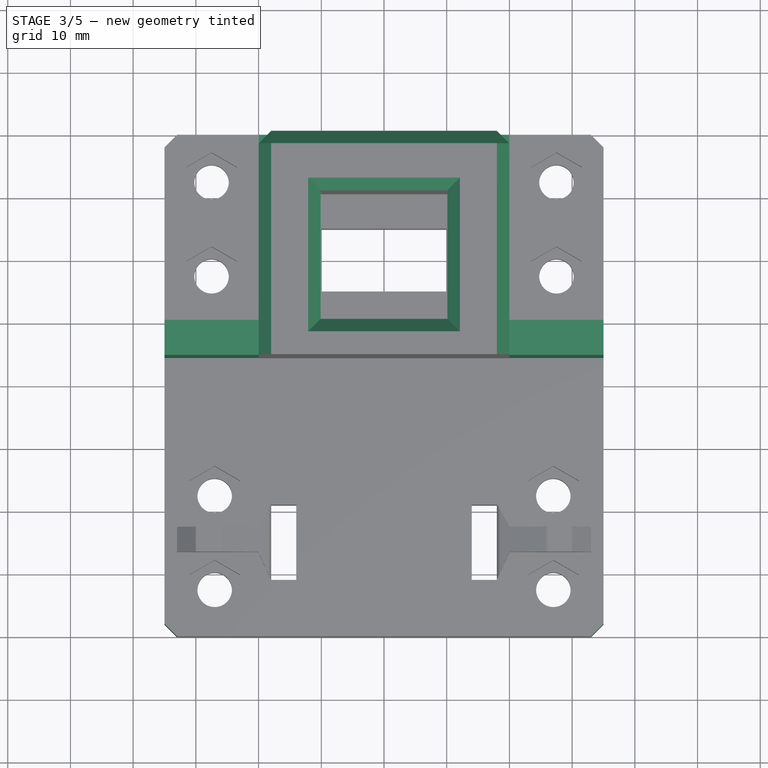
[diagram: stage 3 of 5 — top view after this stage's code; geometry added in this stage tinted green]
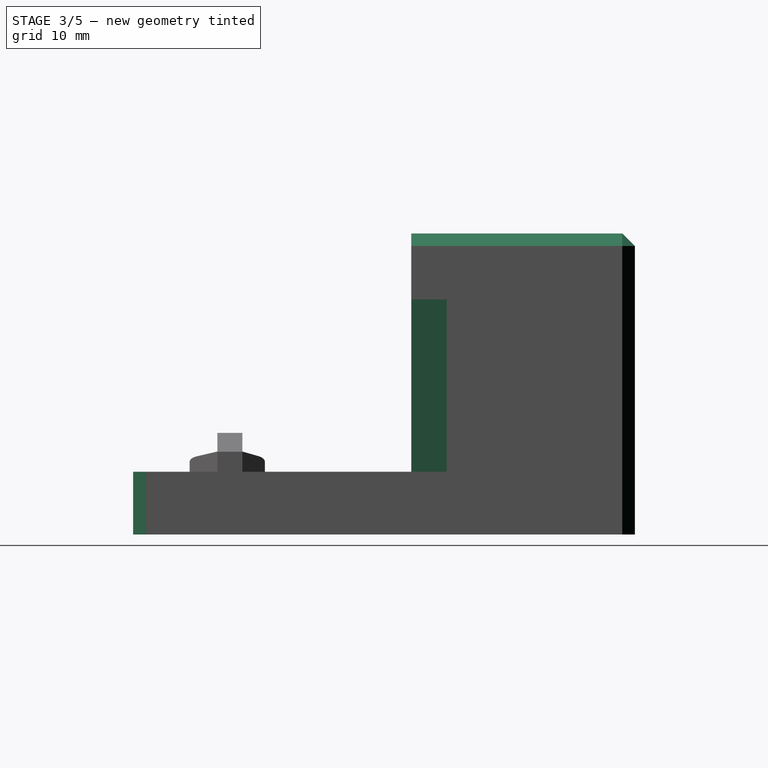
[diagram: stage 3 of 5 — right view after this stage's code; geometry added in this stage tinted green]
FEATURE [PartDesign::Plane] DatumPlane001
  AttachmentOffset = pos=(0,0,-2) rot=(0,0,1;0rad)
  Length = 84.9666
  MapMode = 5
  Placement = pos=(0,0,8) rot=(0,0,1;0rad)
  ResizeMode = 0
  Support = -> [Pad001]
  Width = 94.9666
FEATURE [PartDesign::Plane] DatumPlane002
  Length = 84.9666
  MapMode = 5
  Placement = pos=(0,0,10) rot=(0,0,1;0rad)
  ResizeMode = 0
  Support = -> [Pad001]
  Width = 94.9666
FEATURE [PartDesign::Plane] DatumPlane004
  Length = 95.284
  MapMode = 5
  Placement = pos=(-20,0,0) rot=(0.57735,-0.57735,-0.57735;2.0944rad)
  ResizeMode = 0
  Support = -> [Pad001]
  Width = 88.284
FEATURE [Sketcher::SketchObject] Sketch009
  FullyConstrained = true
  MapMode = 5
  Placement = pos=(-20,0,0) rot=(0.57735,-0.57735,-0.57735;2.0944rad)
  Support = -> [DatumPlane004]
  sketch-geometry (11):
    g0: Circle CenterX=-5.5 CenterY=45 CenterZ=0 NormalX=0 NormalY=0 NormalZ=1 AngleXU=0 Radius=1.375
    g1: Circle CenterX=-24.5 CenterY=45 CenterZ=0 NormalX=0 NormalY=0 NormalZ=1 AngleXU=0 Radius=1.375
    g2: GeomPoint X=-2.5 Y=48 Z=0
    g3: LineSegment StartX=-9 StartY=42 StartZ=0 EndX=-9 EndY=36 EndZ=0
    g4: LineSegment StartX=-9 StartY=36 StartZ=0 EndX=-21.5 EndY=36 EndZ=0
    g5: LineSegment StartX=-21.5 StartY=36 StartZ=0 EndX=-21.5 EndY=42 EndZ=0
    g6: LineSegment StartX=-32.5 StartY=48 StartZ=0 EndX=-27.5 EndY=48 EndZ=0
    g7: LineSegment StartX=-27.5 StartY=48 StartZ=0 EndX=-27.5 EndY=33 EndZ=0
    g8: LineSegment StartX=-27.5 StartY=33 StartZ=0 EndX=-32.5 EndY=33 EndZ=0
    g9: LineSegment StartX=-32.5 StartY=33 StartZ=0 EndX=-32.5 EndY=48 EndZ=0
    g10: LineSegment StartX=-21.5 StartY=42 StartZ=0 EndX=-9 EndY=42 EndZ=0
  constraints (32):
    c: DistanceX(g1,g2) = 22
    c: DistanceY(g1,g2) = 3
    c: DistanceY(g0,g2) = 3
    c: DistanceX(g0,g2) = 3
    c: Diameter(g1) = 2.75
    c: Diameter(g0) = 2.75
    c: Coincident(g3,g4)
    c: Coincident(g4,g5)
    c: Horizontal(g4)
    c: Vertical(g5)
    c: DistanceY(g4,g2) = 12
    c: Coincident(g6,g7)
    c: Coincident(g7,g8)
    c: Coincident(g8,g9)
    c: Coincident(g9,g6)
    c: Horizontal(g6)
    c: Horizontal(g8)
    c: Vertical(g7)
    c: Vertical(g9)
    c: DistanceX(g6,g2) = 25
    c: DistanceX(g6,g2) = 30
    c: DistanceY(g6,g2) = 0
    c: DistanceY(g7,g2) = 15
    c: Coincident(g5,g10)
    c: DistanceX(g2,g-1) = 2.5
    c: Vertical(g3)
    c: DistanceY(g-1,g2) = 48
    c: Equal(g5,g3)
    c: DistanceX(g4,g4) = 12.5
    c: Coincident(g10,g3)
    c: DistanceY(g-1,g3) = 42
    c: DistanceX(g3,g2) = 6.5
FEATURE [Sketcher::SketchObject] Sketch013
  FullyConstrained = false
  MapMode = 5
  Placement = pos=(-20,0,0) rot=(0.57735,-0.57735,-0.57735;2.0944rad)
  Support = -> [DatumPlane004]
  sketch-geometry (4):
    g0: LineSegment StartX=-30.7234 StartY=48.7577 StartZ=0 EndX=-1.20088 EndY=48.7577 EndZ=0
    g1: LineSegment StartX=-1.20088 StartY=48.7577 StartZ=0 EndX=-1.20088 EndY=29.815 EndZ=0
    g2: LineSegment StartX=-1.20088 StartY=29.815 StartZ=0 EndX=-30.7234 EndY=29.815 EndZ=0
    g3: LineSegment StartX=-30.7234 StartY=29.815 StartZ=0 EndX=-30.7234 EndY=48.7577 EndZ=0
  constraints (8):
    c: Coincident(g0,g1)
    c: Coincident(g1,g2)
    c: Coincident(g2,g3)
    c: Coincident(g3,g0)
    c: Horizontal(g0)
    c: Horizontal(g2)
    c: Vertical(g1)
    c: Vertical(g3)
FEATURE [Sketcher::SketchObject] Sketch016
  FullyConstrained = true
  MapMode = 5
  Placement = pos=(0,0,10) rot=(0,0,1;0rad)
  Support = -> [DatumPlane]
  sketch-geometry (12):
    g0: LineSegment StartX=-35 StartY=-5.6 StartZ=0 EndX=35 EndY=-5.6 EndZ=0
    g1: LineSegment StartX=35 StartY=-5.6 StartZ=0 EndX=35 EndY=0 EndZ=0
    g2: LineSegment StartX=-35 StartY=0 StartZ=0 EndX=-35 EndY=-5.6 EndZ=0
    g3: LineSegment StartX=35 StartY=0 StartZ=0 EndX=-35 EndY=0 EndZ=0
    g4: LineSegment StartX=-50 StartY=-16.95 StartZ=0 EndX=50 EndY=-16.95 EndZ=0
    g5: LineSegment StartX=50 StartY=-16.95 StartZ=0 EndX=50 EndY=-24.95 EndZ=0
    g6: LineSegment StartX=50 StartY=-24.95 StartZ=0 EndX=-50 EndY=-24.95 EndZ=0
    g7: LineSegment StartX=-50 StartY=-24.95 StartZ=0 EndX=-50 EndY=-16.95 EndZ=0
    g8: LineSegment StartX=-22.7 StartY=-21.95 StartZ=0 EndX=22.7 EndY=-21.95 EndZ=0
    g9: LineSegment StartX=22.7 StartY=-21.95 StartZ=0 EndX=22.7 EndY=-11.95 EndZ=0
    g10: LineSegment StartX=22.7 StartY=-11.95 StartZ=0 EndX=-22.7 EndY=-11.95 EndZ=0
    g11: LineSegment StartX=-22.7 StartY=-11.95 StartZ=0 EndX=-22.7 EndY=-21.95 EndZ=0
  constraints (34):
    c: Coincident(g0,g1)
    c: Coincident(g3,g2)
    c: Coincident(g2,g0)
    c: Vertical(g1)
    c: Vertical(g2)
    c: Symmetric(g0,g0,g-2)
    c: DistanceX(g0,g0) = 70
    c: Coincident(g4,g5)
    c: Coincident(g5,g6)
    c: Coincident(g6,g7)
    c: Coincident(g7,g4)
    c: Horizontal(g4)
    c: Vertical(g5)
    c: Vertical(g7)
    c: Coincident(g8,g9)
    c: Coincident(g9,g10)
    c: Coincident(g10,g11)
    c: Coincident(g11,g8)
    c: Horizontal(g8)
    c: Vertical(g9)
    c: Vertical(g11)
    c: Symmetric(g10,g9,g-2)
    c: Symmetric(g5,g6,g-2)
    c: DistanceY(g5,g5) = 8
    c: DistanceY(g5,g9) = 13
    c: DistanceY(g5,g8) = 3
    c: DistanceX(g10,g10) = 45.4
    c: DistanceX(g6,g6) = 100
    c: Horizontal(g3)
    c: DistanceY(g9,g0) = 6.35
    c: Coincident(g3,g1)
    c: PointOnObject(g1,g-1)
    c: DistanceY(g10,g2) = 11.95
    c: DistanceY(g2,g2) = 5.6
FEATURE [PartDesign::Chamfer] Chamfer  label="ChamferExtrusionHolder"
  Angle = 45
  Base = -> Pad001 [Edge298,Edge297,Edge296,Edge295,Edge294,Edge129,Edge125,Edge123,Edge128]
  BaseFeature = -> Pad001
  ChamferType = 0
  FlipDirection = false
  Size = 2
  Size2 = 1
  SupportTransform = false
  UseAllEdges = false
FEATURE [PartDesign::Chamfer] Chamfer008
  Angle = 60
  Base = -> Chamfer [Edge93,Edge94,Edge103,Edge97]
  BaseFeature = -> Chamfer
  ChamferType = 0
  FlipDirection = false
  Size = 2
  Size2 = 1
  SupportTransform = false
  UseAllEdges = false
FEATURE [PartDesign::Pad] Pad005  label="PadCarriageMount"
  BaseFeature = -> Chamfer008
  Direction = (0,0,1)
  Length = 27.5
  Length2 = 10
  Profile = -> Sketch016
  ReferenceAxis = -> Sketch016 [N_Axis]
  Type = 0
FEATURE [PartDesign::Pocket] Pocket003  label="PocketExtrusionBoltClearance"
  AllowMultiFace = false
  BaseFeature = -> Pad005
  Direction = (-1e-16,-1,2e-16)
  Length = 5
  Length2 = 100
  Profile = -> Sketch007
  Type = 0
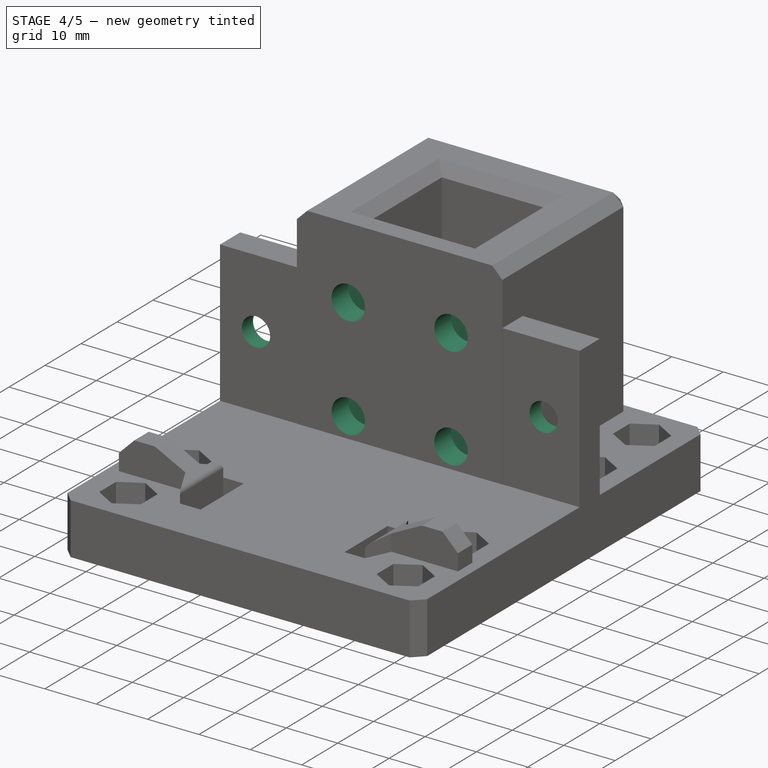
[diagram: stage 4 of 5 — iso view after this stage's code; geometry added in this stage tinted green]
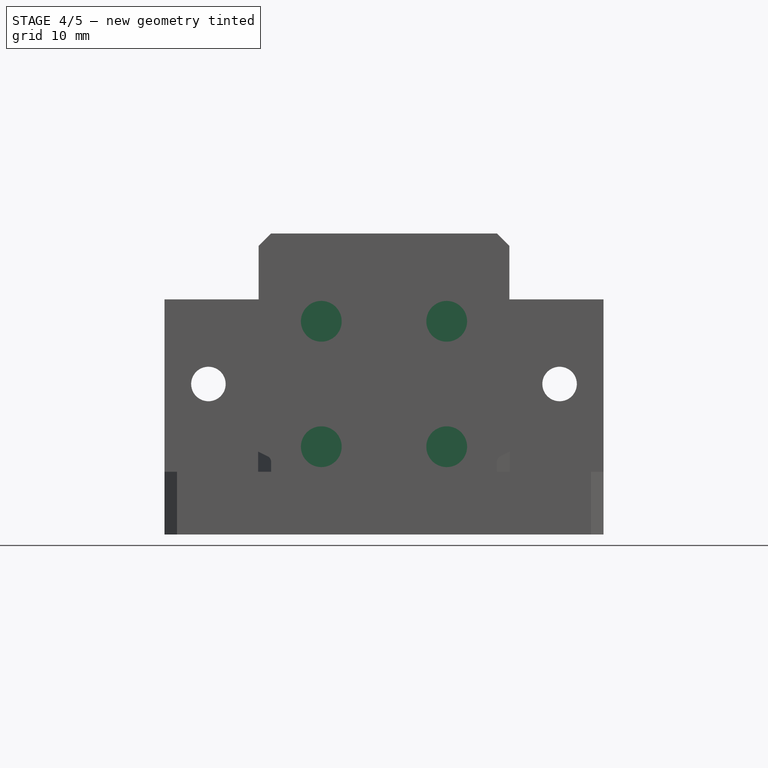
[diagram: stage 4 of 5 — front view after this stage's code; geometry added in this stage tinted green]
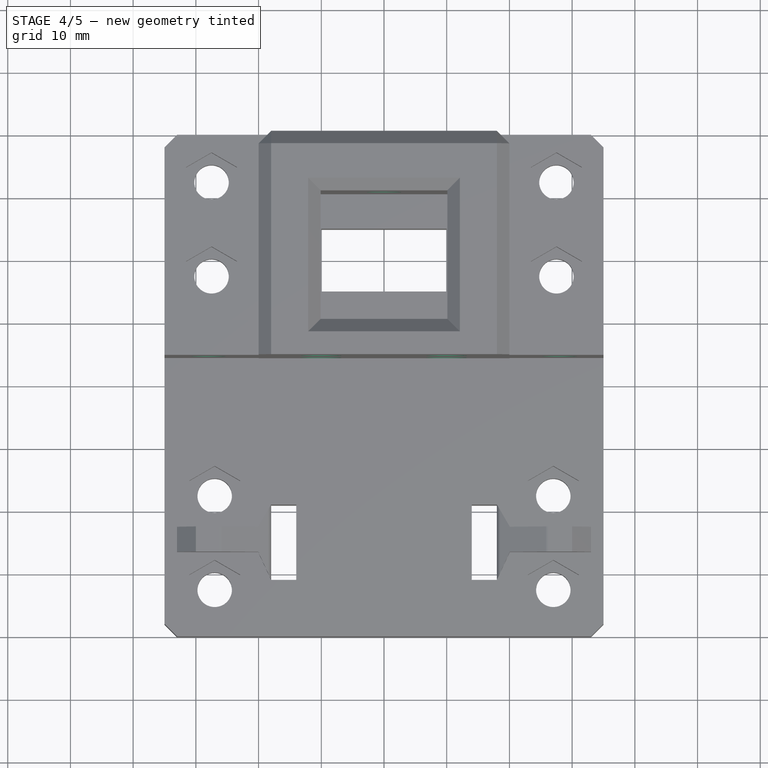
[diagram: stage 4 of 5 — top view after this stage's code; geometry added in this stage tinted green]
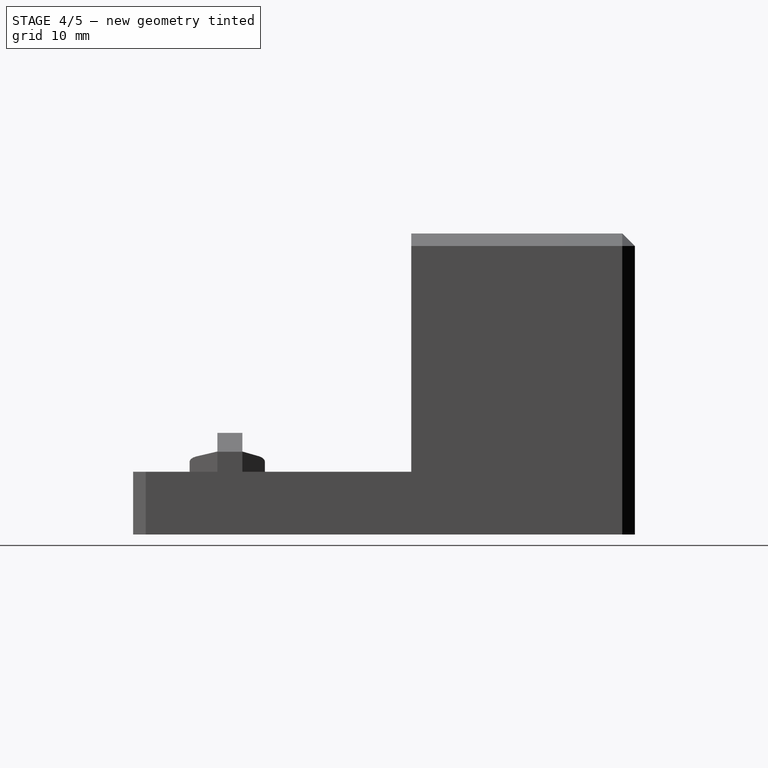
[diagram: stage 4 of 5 — right view after this stage's code; geometry added in this stage tinted green]
FEATURE [PartDesign::Pocket] Pocket004  label="PocketExtrusionBolt"
  AllowMultiFace = false
  BaseFeature = -> Pocket003
  Direction = (-1e-16,-1,2e-16)
  Length = 10
  Length2 = 100
  Profile = -> Sketch008
  Type = 0
FEATURE [PartDesign::Plane] DatumPlane007  label="DatumPlaneCarriageTop"
  Length = 84.2969
  MapMode = 5
  Placement = pos=(0,0,0) rot=(0,0.707107,0.707107;3.14159rad)
  ResizeMode = 0
  Support = -> [Pocket004]
  Width = 87.2969
FEATURE [Sketcher::SketchObject] Sketch014
  FullyConstrained = false
  MapMode = 5
  Placement = pos=(0,0,0) rot=(0,0.707107,0.707107;3.14159rad)
  Support = -> [DatumPlane007]
  sketch-geometry (11):
    g0: Circle CenterX=-28 CenterY=24 CenterZ=0 NormalX=0 NormalY=0 NormalZ=1 AngleXU=0 Radius=2.75
    g1: Circle CenterX=28 CenterY=24 CenterZ=0 NormalX=0 NormalY=0 NormalZ=1 AngleXU=0 Radius=2.75
    g2: LineSegment StartX=-22.7 StartY=37.5 StartZ=0 EndX=22.7 EndY=37.5 EndZ=0
    g3: LineSegment StartX=22.7 StartY=37.5 StartZ=0 EndX=22.7 EndY=10.5 EndZ=0
    g4: LineSegment StartX=22.7 StartY=10.5 StartZ=0 EndX=-22.7 EndY=10.5 EndZ=0
    g5: LineSegment StartX=-22.7 StartY=10.5 StartZ=0 EndX=-22.7 EndY=37.5 EndZ=0
    g6: LineSegment StartX=-28 StartY=24 StartZ=0 EndX=28 EndY=24 EndZ=0
    g7: LineSegment StartX=-59.5206 StartY=34 StartZ=0 EndX=77.4187 EndY=34 EndZ=0
    g8: LineSegment StartX=77.4187 StartY=34 StartZ=0 EndX=77.4187 EndY=14 EndZ=0
    g9: LineSegment StartX=77.4187 StartY=14 StartZ=0 EndX=-59.5206 EndY=14 EndZ=0
    g10: LineSegment StartX=-59.5206 StartY=14 StartZ=0 EndX=-59.5206 EndY=34 EndZ=0
  constraints (27):
    c: Diameter(g0) = 5.5
    c: Equal(g0,g1)
    c: DistanceX(g0,g1) = 56  'Spacing'
    c: Symmetric(g1,g0,g-2)
    c: DistanceY(g-1,g0) = 24  'YOffset'
    c: Coincident(g2,g3)
    c: Coincident(g3,g4)
    c: Coincident(g4,g5)
    c: Coincident(g5,g2)
    c: Horizontal(g4)
    c: Vertical(g5)
    c: Symmetric(g2,g2,g-2)
    c: DistanceX(g2,g2) = 45.4
    c: DistanceY(g3,g3) = 27
    c: Coincident(g6,g0)
    c: Coincident(g6,g1)
    c: Symmetric(g2,g3,g6)
    c: Coincident(g7,g8)
    c: Coincident(g8,g9)
    c: Coincident(g9,g10)
    c: Coincident(g10,g7)
    c: Horizontal(g7)
    c: Horizontal(g9)
    c: Vertical(g10)
    c: Symmetric(g8,g7,g6)
    c: DistanceY(g8,g8) = 20
    c: DistanceY(g-1,g9) = 14
FEATURE [PartDesign::Pocket] Pocket  label="PocketCarriageHoles"
  BaseFeature = -> Pocket004
  Direction = (0,-1,2e-16)
  Length = 5
  Length2 = 5
  Profile = -> Sketch014
  ReferenceAxis = -> Sketch014 [N_Axis]
  Type = 1
FEATURE [Sketcher::SketchObject] Sketch015
  FullyConstrained = true
  MapMode = 5
  Placement = pos=(0,0,0) rot=(0,0.707107,0.707107;3.14159rad)
  Support = -> [DatumPlane007]
  expr: Constraints[3] = <<Sketch014>>.Constraints.Spacing
  expr: Constraints[4] = <<Sketch014>>.Constraints.YOffset
  sketch-geometry (2):
    g0: Circle CenterX=-28 CenterY=24 CenterZ=0 NormalX=0 NormalY=0 NormalZ=1 AngleXU=0 Radius=5
    g1: Circle CenterX=28 CenterY=24 CenterZ=0 NormalX=0 NormalY=0 NormalZ=1 AngleXU=0 Radius=5
  constraints (5):
    c: Equal(g0,g1)
    c: Symmetric(g0,g1,g-2)
    c: Diameter(g0) = 10
    c: DistanceX(g0,g1) = 56
    c: DistanceY(g-1,g0) = 24
FEATURE [PartDesign::Pocket] Pocket010  label="PocketCarriageBoltInset"
  BaseFeature = -> Pocket
  Direction = (0,-1,2e-16)
  Length = 2.5
  Length2 = 5
  Profile = -> Sketch015
  ReferenceAxis = -> Sketch015 [N_Axis]
  Type = 0
FEATURE [Sketcher::SketchObject] Sketch018
  AttachmentOffset = pos=(0,0,-1) rot=(0,0,1;0rad)
  FullyConstrained = false
  MapMode = 2
  Placement = pos=(0,-1,2e-16) rot=(0,0.707107,0.707107;3.14159rad)
  Support = -> [DatumPlane007]
  sketch-geometry (17):
    g0: LineSegment StartX=-22.7 StartY=37.5 StartZ=0 EndX=22.7 EndY=37.5 EndZ=0
    g1: LineSegment StartX=22.7 StartY=37.5 StartZ=0 EndX=22.7 EndY=10.5 EndZ=0
    g2: LineSegment StartX=22.7 StartY=10.5 StartZ=0 EndX=-22.7 EndY=10.5 EndZ=0
    g3: LineSegment StartX=-22.7 StartY=10.5 StartZ=0 EndX=-22.7 EndY=37.5 EndZ=0
    g4: LineSegment StartX=-27.0832 StartY=24 StartZ=0 EndX=27.4168 EndY=24 EndZ=0
    g5: LineSegment StartX=-59.5206 StartY=34 StartZ=0 EndX=77.4185 EndY=34 EndZ=0
    g6: LineSegment StartX=77.4185 StartY=34 StartZ=0 EndX=77.4185 EndY=14 EndZ=0
    g7: LineSegment StartX=77.4185 StartY=14 StartZ=0 EndX=-59.5206 EndY=14 EndZ=0
    g8: LineSegment StartX=-59.5206 StartY=14 StartZ=0 EndX=-59.5206 EndY=34 EndZ=0
    g9: LineSegment StartX=-10 StartY=34 StartZ=0 EndX=10 EndY=34 EndZ=0
    g10: LineSegment StartX=10 StartY=34 StartZ=0 EndX=10 EndY=14 EndZ=0
    g11: LineSegment StartX=10 StartY=14 StartZ=0 EndX=-10 EndY=14 EndZ=0
    g12: LineSegment StartX=-10 StartY=14 StartZ=0 EndX=-10 EndY=34 EndZ=0
    g13: Circle CenterX=-10 CenterY=34 CenterZ=0 NormalX=0 NormalY=0 NormalZ=1 AngleXU=0 Radius=3.25
    g14: Circle CenterX=10 CenterY=34 CenterZ=0 NormalX=0 NormalY=0 NormalZ=1 AngleXU=0 Radius=3.25
    g15: Circle CenterX=10 CenterY=14 CenterZ=0 NormalX=0 NormalY=0 NormalZ=1 AngleXU=0 Radius=3.25
    g16: Circle CenterX=-10 CenterY=14 CenterZ=0 NormalX=0 NormalY=0 NormalZ=1 AngleXU=0 Radius=3.25
  constraints (39):
    c: Coincident(g0,g1)
    c: Coincident(g1,g2)
    c: Coincident(g2,g3)
    c: Coincident(g3,g0)
    c: Horizontal(g2)
    c: Vertical(g3)
    c: Symmetric(g0,g0,g-2)
    c: DistanceX(g0,g0) = 45.4
    c: DistanceY(g1,g1) = 27
    c: Symmetric(g0,g1,g4)
    c: Coincident(g5,g6)
    c: Coincident(g6,g7)
    c: Coincident(g7,g8)
    c: Coincident(g8,g5)
    c: Horizontal(g5)
    c: Horizontal(g7)
    c: Vertical(g8)
    c: Symmetric(g6,g5,g4)
    c: DistanceY(g6,g6) = 20
    c: DistanceY(g-1,g7) = 14
    c: Coincident(g9,g10)
    c: Coincident(g10,g11)
    c: Coincident(g11,g12)
    c: Coincident(g12,g9)
    c: Horizontal(g11)
    c: Vertical(g12)
    c: Symmetric(g10,g9,g4)
    c: DistanceX(g9,g9) = 20
    c: Symmetric(g9,g9,g-2)
    c: Equal(g10,g9)
    c: Coincident(g13,g9)
    c: Coincident(g14,g9)
    c: Coincident(g15,g10)
    c: Coincident(g16,g11)
    c: Equal(g16,g15)
    c: Equal(g14,g15)
    c: Equal(g13,g14)
    c: Diameter(g13) = 6.5
    c: Horizontal(g4)
FEATURE [PartDesign::Pocket] Pocket011  label="PocketCarriageBoltClearance"
  BaseFeature = -> Pocket010
  Direction = (0,-1,2e-16)
  Length = 5
  Length2 = 5
  Profile = -> Sketch018
  ReferenceAxis = -> Sketch018 [N_Axis]
  Type = 1
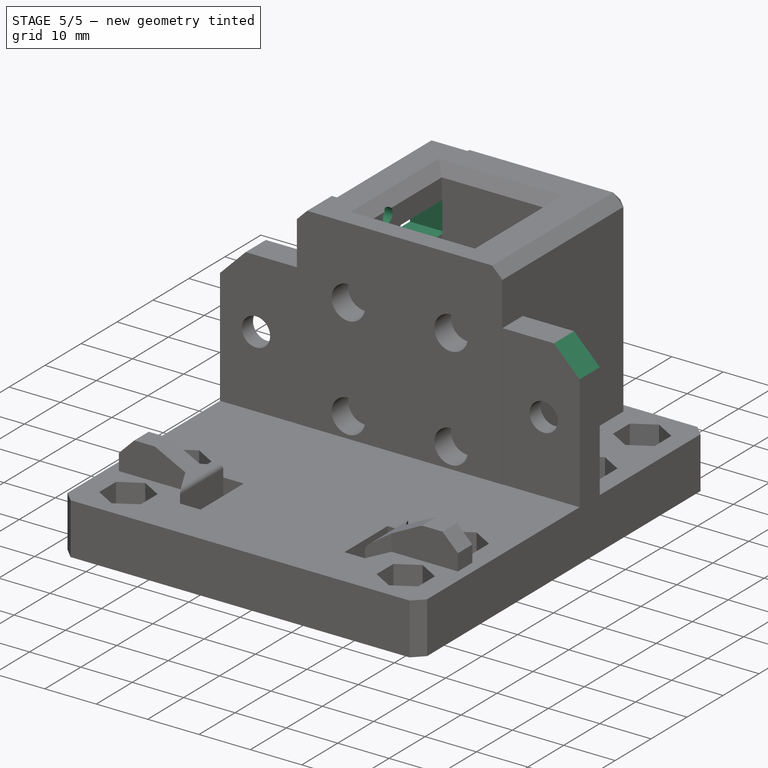
[diagram: stage 5 of 5 — iso view after this stage's code; geometry added in this stage tinted green]
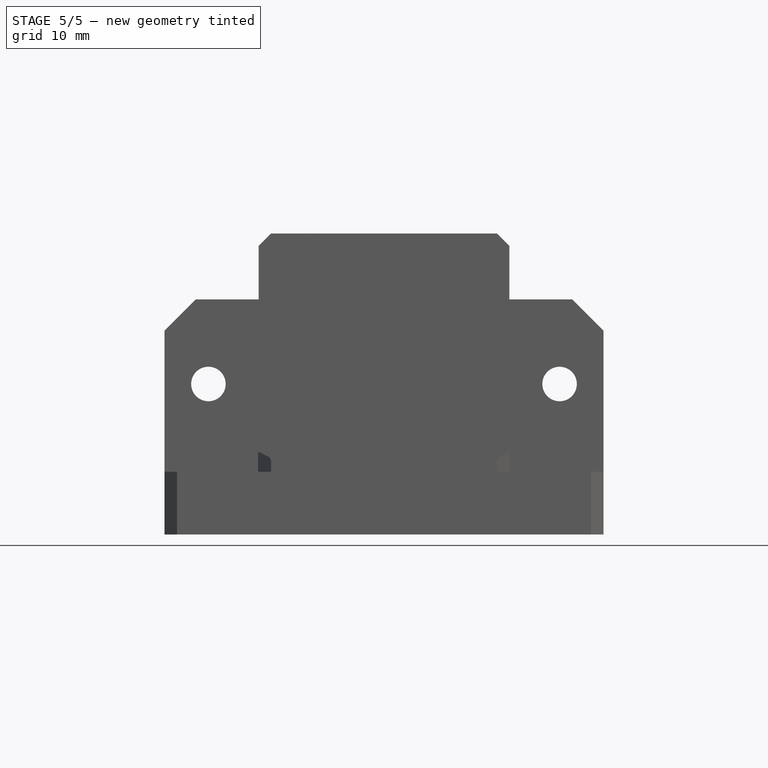
[diagram: stage 5 of 5 — front view after this stage's code; geometry added in this stage tinted green]
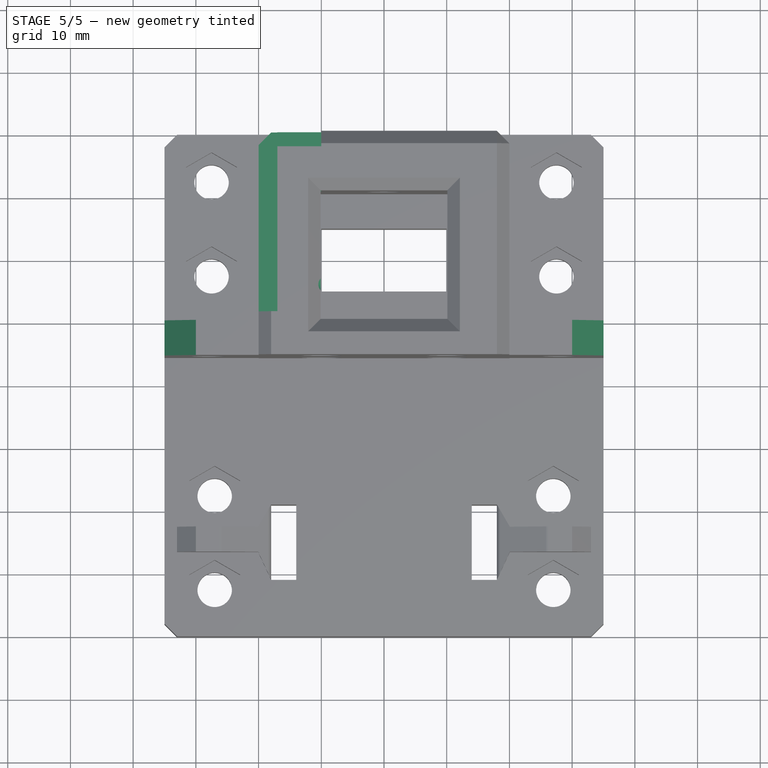
[diagram: stage 5 of 5 — top view after this stage's code; geometry added in this stage tinted green]
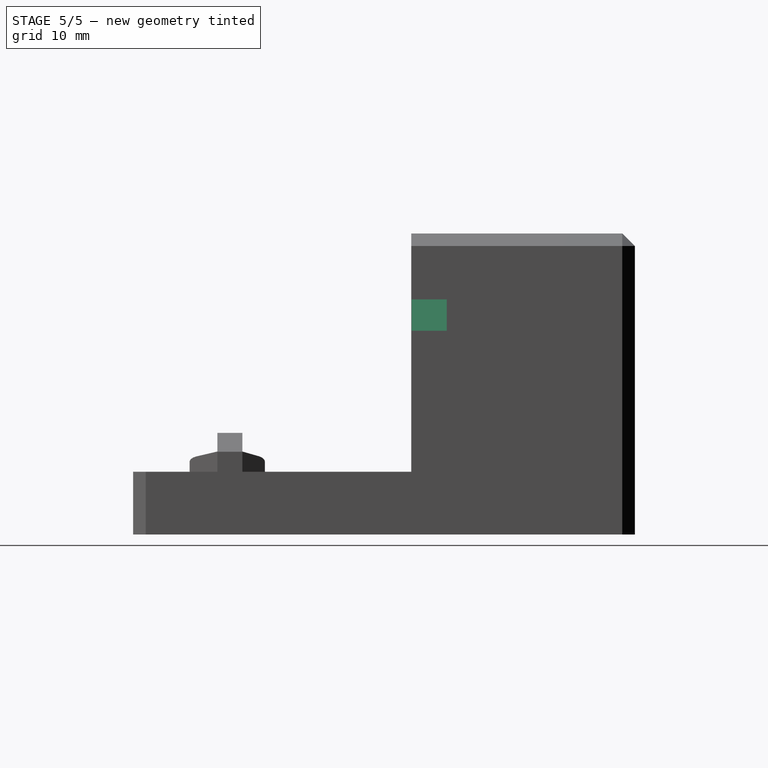
[diagram: stage 5 of 5 — right view after this stage's code; geometry added in this stage tinted green]
FEATURE [PartDesign::Chamfer] Chamfer009  label="ChamferCarriageMount"
  Angle = 45
  Base = -> Pocket011 [Edge373,Edge124]
  BaseFeature = -> Pocket011
  ChamferType = 0
  FlipDirection = false
  Size = 5
  Size2 = 1
  SupportTransform = false
  UseAllEdges = false
FEATURE [PartDesign::Pocket] Pocket008  label="PocketPN"
  BaseFeature = -> Chamfer009
  Direction = (-1e-16,-1,2e-16)
  Length = 0.5
  Length2 = 100
  Profile = -> ShapeString
  Type = 0
FEATURE [PartDesign::Pocket] Pocket005  label="PocketLimitHoles"
  AllowMultiFace = false
  BaseFeature = -> Pocket008
  Direction = (1,0,0)
  Length = 10
  Length2 = 100
  Profile = -> Sketch009
  Refine = true
  Type = 0
FEATURE [PartDesign::Pocket] Pocket009  label="PocketLimitInset"
  BaseFeature = -> Pocket005
  Direction = (1,0,0)
  Length = 3
  Length2 = 5
  Profile = -> Sketch013
  ReferenceAxis = -> Sketch013 [N_Axis]
  Type = 0
FEATURE [PartDesign::Body] Body
  Group = -> [Sketch,Pad,DatumPlane,Sketch001,DatumPlane001,DatumPlane002,Sketch004,Pocket002,DatumPlane003,Sketch007,Sketch008,Sketch013,Sketch009,ShapeString,Sketch012,Pad004,Chamfer006,Fillet001,Chamfer007,Fillet,Pad001,DatumPlane004,Sketch016,Chamfer,Chamfer008,Pad005,Pocket003,Pocket004,DatumPlane007,Sketch014,Pocket,Sketch015,Pocket010,Sketch018,Pocket011,Chamfer009,Pocket008,DatumPlane006,Pocket005,+1 more]
  Origin = -> Origin
  Tip = -> Pocket009
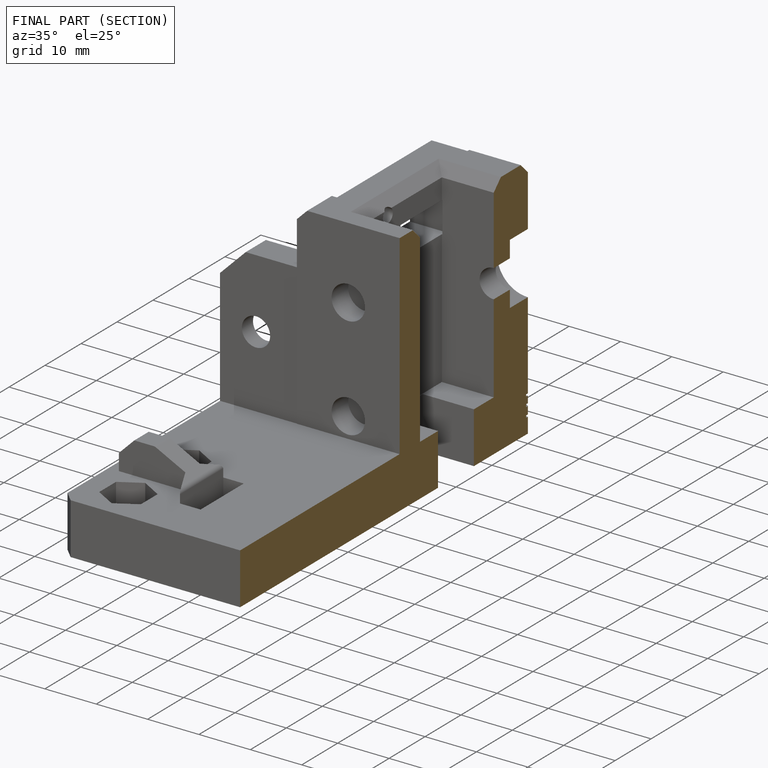
[diagram: finished part — half-section view (interior)]
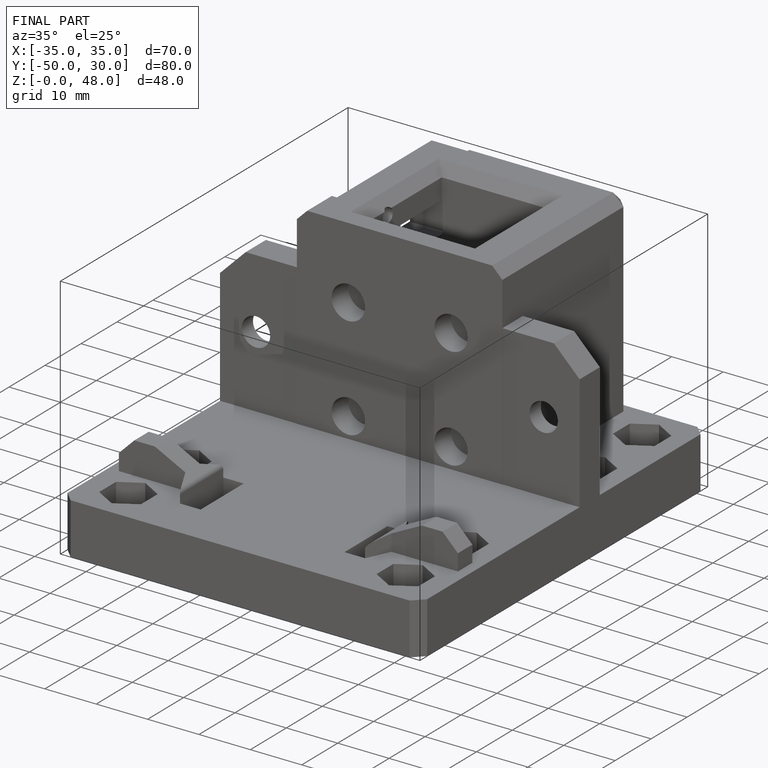
[diagram: finished part — iso view with bounding-box wireframe]
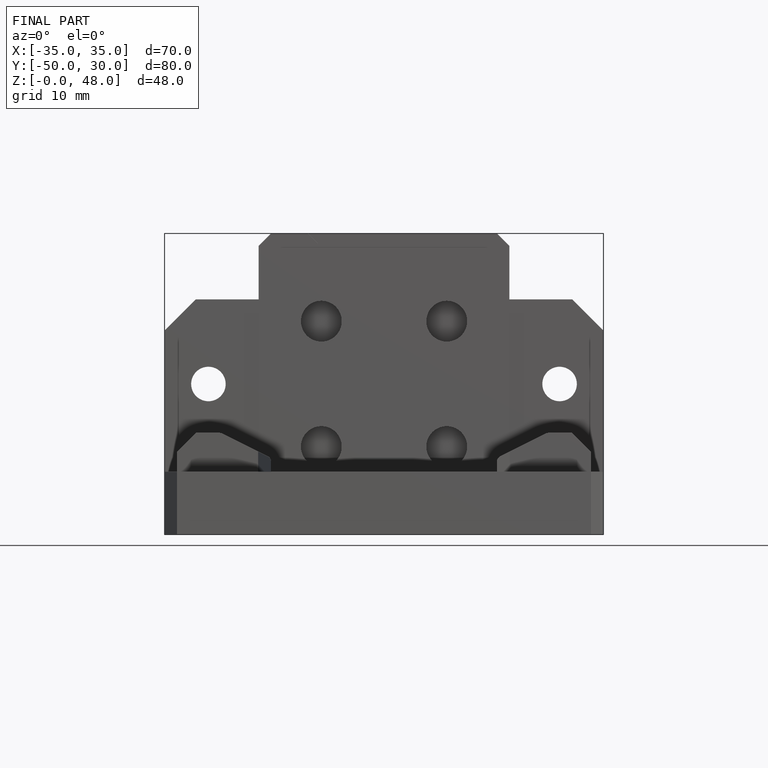
[diagram: finished part — front view with bounding-box wireframe]
